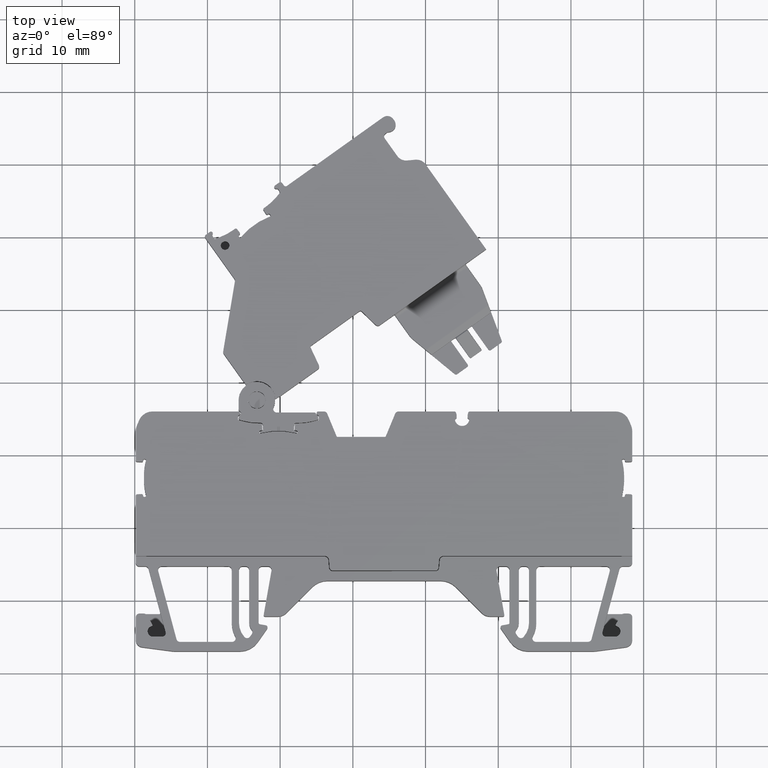
[diagram: clean part render]
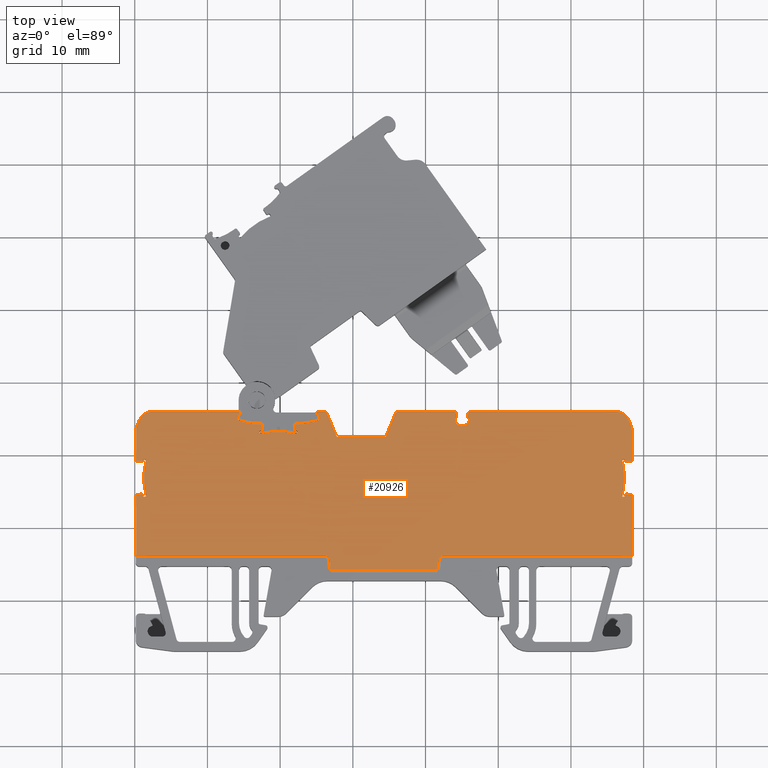
[diagram: same view with one face highlighted and labeled with its STEP entity id]
A machine part, top view. The second image highlights one B-rep face of the part: STEP entity #20926.
In plain terms, the highlighted planar face has unit normal (0, 0, 1).
Its self-contained STEP definition (entity closure, byte-faithful):
#1506 = CIRCLE ( 'NONE', #1532, 0.1500000000000945000 ) ;
#1517 = AXIS2_PLACEMENT_3D ( 'NONE', #8364, #8365, #8373 ) ;
#1532 = AXIS2_PLACEMENT_3D ( 'NONE', #8456, #8445, #8455 ) ;
#1540 = CIRCLE ( 'NONE', #1564, 9.999999999999564800 ) ;
#1555 = CIRCLE ( 'NONE', #1517, 0.2499995448645986300 ) ;
#1564 = AXIS2_PLACEMENT_3D ( 'NONE', #8446, #8458, #8463 ) ;
#1580 = AXIS2_PLACEMENT_3D ( 'NONE', #8532, #8583, #8619 ) ;
#1595 = CIRCLE ( 'NONE', #1602, 0.1999999999999779700 ) ;
#1602 = AXIS2_PLACEMENT_3D ( 'NONE', #8667, #8643, #8636 ) ;
#1618 = CIRCLE ( 'NONE', #1580, 0.1500000000000945000 ) ;
#1748 = CARTESIAN_POINT ( 'NONE',  ( 1530.137814506009800, 739.2804295605375300, 5.849999999999997900 ) ) ;
#1781 = CARTESIAN_POINT ( 'NONE',  ( 1544.294008282264900, 745.4605047375432600, 5.850000000000000500 ) ) ;
#1806 = CARTESIAN_POINT ( 'NONE',  ( 1547.548889693906600, 743.5333239649280600, 5.850000000000001400 ) ) ;
#1808 = CARTESIAN_POINT ( 'NONE',  ( 1547.349075987594900, 743.3245944585564800, 5.850000000000000500 ) ) ;
#1815 = CARTESIAN_POINT ( 'NONE',  ( 1547.549080220052700, 743.5245961472479600, 5.850000000000000500 ) ) ;
#1820 = CARTESIAN_POINT ( 'NONE',  ( 1544.218998089711900, 745.3305926638387300, 5.850000000000002300 ) ) ;
#1841 = CARTESIAN_POINT ( 'NONE',  ( 1597.327748225434600, 736.8368363815310400, 5.850000000000000500 ) ) ;
#1859 = CARTESIAN_POINT ( 'NONE',  ( 1597.030574686436900, 734.4170928687503900, 5.850000000000000500 ) ) ;
#1871 = CARTESIAN_POINT ( 'NONE',  ( 1531.396153665450400, 739.4424406175111200, 5.850000000000000500 ) ) ;
#1909 = CARTESIAN_POINT ( 'NONE',  ( 1531.541696674155400, 734.4170819057061400, 5.850000000000000500 ) ) ;
#1916 = CARTESIAN_POINT ( 'NONE',  ( 1598.434456907024700, 739.2804098858423500, 5.850000000000000500 ) ) ;
#1929 = CARTESIAN_POINT ( 'NONE',  ( 1598.243289584944900, 739.0806050215060200, 5.850000000000000500 ) ) ;
#1940 = CARTESIAN_POINT ( 'NONE',  ( 1576.016202218364900, 744.8211747399680000, 5.849999999999997000 ) ) ;
#1942 = CARTESIAN_POINT ( 'NONE',  ( 1544.394037303590000, 745.5182460559410600, 5.850000000000000500 ) ) ;
#1954 = CARTESIAN_POINT ( 'NONE',  ( 1531.546153513865000, 739.2924406175111500, 5.850000000000000500 ) ) ;
#1977 = CARTESIAN_POINT ( 'NONE',  ( 1552.372272637682500, 743.1746316020623900, 5.850000000000001400 ) ) ;
#1979 = CARTESIAN_POINT ( 'NONE',  ( 1597.176226823459300, 739.4424484188265300, 5.850000000000000500 ) ) ;
#1988 = CARTESIAN_POINT ( 'NONE',  ( 1597.424454789940000, 734.3807938762192900, 5.850000000000000500 ) ) ;
#1990 = CARTESIAN_POINT ( 'NONE',  ( 1552.222275742695000, 743.3246308532419600, 5.850000000000000500 ) ) ;
#1994 = CARTESIAN_POINT ( 'NONE',  ( 1597.176112751589900, 734.2307967161216300, 5.850000000000000500 ) ) ;
#2001 = CARTESIAN_POINT ( 'NONE',  ( 1575.899647284025100, 745.0029353545611500, 5.849999999999997000 ) ) ;
#2002 = CARTESIAN_POINT ( 'NONE',  ( 1531.546153489085100, 734.3807889135539400, 5.850000000000000500 ) ) ;
#2010 = CARTESIAN_POINT ( 'NONE',  ( 1552.372273698221100, 743.0761540405675300, 5.850000000000002300 ) ) ;
#2019 = CARTESIAN_POINT ( 'NONE',  ( 1597.274450995395000, 734.2307938762691000, 5.850000000000000500 ) ) ;
#2025 = CARTESIAN_POINT ( 'NONE',  ( 1544.519038278324400, 745.7347527068732200, 5.850000000000000500 ) ) ;
#2032 = CARTESIAN_POINT ( 'NONE',  ( 1547.310624521899200, 743.3245985186379100, 5.850000000000000500 ) ) ;
#2044 = CARTESIAN_POINT ( 'NONE',  ( 1597.274565637490000, 739.4424463827263000, 5.850000000000000500 ) ) ;
#2061 = CARTESIAN_POINT ( 'NONE',  ( 1551.983796457785500, 743.5333626602340500, 5.850000000000000500 ) ) ;
#2063 = CARTESIAN_POINT ( 'NONE',  ( 1555.313698447330100, 745.3305412210559100, 5.850000000000000500 ) ) ;
#2067 = CARTESIAN_POINT ( 'NONE',  ( 1555.238681809704800, 745.4604546359404400, 5.850000000000001400 ) ) ;
#2086 = CARTESIAN_POINT ( 'NONE',  ( 1555.138650175910200, 745.5181908462634500, 5.850000000000001400 ) ) ;
#2097 = CARTESIAN_POINT ( 'NONE',  ( 1531.541696698568100, 739.2561476238908000, 5.850000000000000500 ) ) ;
#2101 = CARTESIAN_POINT ( 'NONE',  ( 1530.137813892952600, 734.3928002747218200, 5.849999999999997900 ) ) ;
#2103 = CARTESIAN_POINT ( 'NONE',  ( 1532.434281244295100, 745.9846928684037300, 5.850000000000021800 ) ) ;
#2104 = CARTESIAN_POINT ( 'NONE',  ( 1596.137989714234200, 745.9846964441503600, 5.849999999999994300 ) ) ;
#2110 = CARTESIAN_POINT ( 'NONE',  ( 1530.137814321194400, 726.0847028920219400, 5.849999999999996100 ) ) ;
#2166 = CARTESIAN_POINT ( 'NONE',  ( 1531.147814737095100, 739.2537747806250100, 5.850000000000000500 ) ) ;
#2188 = CARTESIAN_POINT ( 'NONE',  ( 1531.147815782457000, 734.4194546214697500, 5.850000000000000500 ) ) ;
#2247 = CARTESIAN_POINT ( 'NONE',  ( 1547.160623600947700, 743.1745992814910600, 5.850000000000000500 ) ) ;
#2282 = CARTESIAN_POINT ( 'NONE',  ( 1556.117462874204900, 726.0847028920218200, 5.849999999999996100 ) ) ;
#2288 = CARTESIAN_POINT ( 'NONE',  ( 1576.108898673910100, 745.9846941071401700, 5.849999999999997900 ) ) ;
#2297 = CARTESIAN_POINT ( 'NONE',  ( 1547.160624140161600, 743.0762891516409400, 5.850000000000000500 ) ) ;
#2342 = CARTESIAN_POINT ( 'NONE',  ( 1530.137814506009800, 743.2689485054615900, 5.849999999999994300 ) ) ;
#2350 = CARTESIAN_POINT ( 'NONE',  ( 1597.030679744924600, 739.2561585857955600, 5.850000000000000500 ) ) ;
#2351 = CARTESIAN_POINT ( 'NONE',  ( 1598.434456679442100, 734.3927940862464500, 5.849999999999997900 ) ) ;
#2352 = CARTESIAN_POINT ( 'NONE',  ( 1575.783092349686100, 745.4846940691304600, 5.849999999999999600 ) ) ;
#2362 = CARTESIAN_POINT ( 'NONE',  ( 1530.329084489008700, 734.5926107711958400, 5.850000000000000500 ) ) ;
#2385 = CARTESIAN_POINT ( 'NONE',  ( 1598.434456905855100, 743.2689517748967800, 5.849999999999994300 ) ) ;
#2389 = CARTESIAN_POINT ( 'NONE',  ( 1598.282220819749500, 744.0343071198520900, 5.849999999999999600 ) ) ;
#2394 = CARTESIAN_POINT ( 'NONE',  ( 1575.783092349685800, 745.1846959691539500, 5.849999999999994300 ) ) ;
#2396 = CARTESIAN_POINT ( 'NONE',  ( 1598.434456251200800, 726.0847028920219400, 5.849999999999996100 ) ) ;
#2398 = CARTESIAN_POINT ( 'NONE',  ( 1597.985755257028800, 744.7500508138324400, 5.849999999999996100 ) ) ;
#2399 = CARTESIAN_POINT ( 'NONE',  ( 1552.185976654881200, 742.9306105734536900, 5.850000000000000500 ) ) ;
#3140 = CARTESIAN_POINT ( 'NONE',  ( 1547.160623960423700, 743.1090591949243800, 5.850000000000000500 ) ) ;
#3144 = CARTESIAN_POINT ( 'NONE',  ( 1547.160623780685700, 743.1418292382077200, 5.850000000000000500 ) ) ;
#3145 = CARTESIAN_POINT ( 'NONE',  ( 1547.160623600947700, 743.1745992814910600, 5.850000000000000500 ) ) ;
#3173 = CARTESIAN_POINT ( 'NONE',  ( 1547.160624140161600, 743.0762891516409400, 5.850000000000000500 ) ) ;
#3249 = CARTESIAN_POINT ( 'NONE',  ( 1552.372272637682500, 743.1746316020623900, 5.850000000000001400 ) ) ;
#3256 = CARTESIAN_POINT ( 'NONE',  ( 1552.372273698221100, 743.0761540405675300, 5.850000000000002300 ) ) ;
#3275 = CARTESIAN_POINT ( 'NONE',  ( 1552.372272991196700, 743.1418058559132800, 5.850000000000000500 ) ) ;
#3289 = CARTESIAN_POINT ( 'NONE',  ( 1552.372273344707500, 743.1089801097801900, 5.850000000000000500 ) ) ;
#3456 = CARTESIAN_POINT ( 'NONE',  ( 1547.233228992097800, 743.3095873353078100, 5.850000000000001400 ) ) ;
#3460 = CARTESIAN_POINT ( 'NONE',  ( 1547.160986381843300, 743.2161296777989000, 5.850000000000001400 ) ) ;
#3462 = CARTESIAN_POINT ( 'NONE',  ( 1547.160623600947700, 743.1745992814910600, 5.850000000000000500 ) ) ;
#3485 = CARTESIAN_POINT ( 'NONE',  ( 1547.175887125596800, 743.2517431673741200, 5.850000000000001400 ) ) ;
#3493 = CARTESIAN_POINT ( 'NONE',  ( 1547.268584479782200, 743.3242317577484100, 5.850000000000000500 ) ) ;
#3494 = CARTESIAN_POINT ( 'NONE',  ( 1547.310624521899200, 743.3245985186379100, 5.850000000000000500 ) ) ;
#3506 = CARTESIAN_POINT ( 'NONE',  ( 1597.241671580793300, 734.2307948228869900, 5.850000000000000500 ) ) ;
#3526 = CARTESIAN_POINT ( 'NONE',  ( 1597.274450995395000, 734.2307938762691000, 5.850000000000000500 ) ) ;
#3554 = CARTESIAN_POINT ( 'NONE',  ( 1597.208892166191800, 734.2307957695044300, 5.850000000000000500 ) ) ;
#3559 = CARTESIAN_POINT ( 'NONE',  ( 1597.176112751589900, 734.2307967161216300, 5.850000000000000500 ) ) ;
#3579 = CIRCLE ( 'NONE', #3587, 0.2000011342688790000 ) ;
#3584 = AXIS2_PLACEMENT_3D ( 'NONE', #18050, #18066, #18074 ) ;
#3585 = VECTOR ( 'NONE', #18055, 1000.000000000000000 ) ;
#3587 = AXIS2_PLACEMENT_3D ( 'NONE', #18101, #18102, #18114 ) ;
#3592 = AXIS2_PLACEMENT_3D ( 'NONE', #18011, #17982, #17987 ) ;
#3598 = VECTOR ( 'NONE', #18038, 1000.000000000000000 ) ;
#3599 = VECTOR ( 'NONE', #18002, 1000.000000000000000 ) ;
#3600 = CIRCLE ( 'NONE', #3592, 0.1999999999999779700 ) ;
#3605 = CIRCLE ( 'NONE', #3584, 2.000000000000223800 ) ;
#3620 = VECTOR ( 'NONE', #17937, 1000.000000000000000 ) ;
#3622 = VECTOR ( 'NONE', #18014, 1000.000000000000000 ) ;
#3628 = CIRCLE ( 'NONE', #3636, 0.2500000000000834900 ) ;
#3636 = AXIS2_PLACEMENT_3D ( 'NONE', #18064, #18073, #18070 ) ;
#3641 = VECTOR ( 'NONE', #18154, 1000.000000000000100 ) ;
#3647 = CIRCLE ( 'NONE', #3686, 0.1500000000000945000 ) ;
#3651 = CIRCLE ( 'NONE', #3689, 1.000000058330119400 ) ;
#3652 = VECTOR ( 'NONE', #18156, 1000.000000000000200 ) ;
#3654 = VECTOR ( 'NONE', #18261, 1000.000000000000100 ) ;
#3663 = CIRCLE ( 'NONE', #3694, 0.1500000000000945000 ) ;
#3686 = AXIS2_PLACEMENT_3D ( 'NONE', #18198, #18181, #18199 ) ;
#3689 = AXIS2_PLACEMENT_3D ( 'NONE', #18078, #18082, #18145 ) ;
#3693 = VECTOR ( 'NONE', #18220, 1000.000000000000100 ) ;
#3694 = AXIS2_PLACEMENT_3D ( 'NONE', #18239, #18232, #18233 ) ;
#3704 = VECTOR ( 'NONE', #25178, 1000.000000000000000 ) ;
#3709 = AXIS2_PLACEMENT_3D ( 'NONE', #18256, #18272, #18275 ) ;
#3711 = AXIS2_PLACEMENT_3D ( 'NONE', #18329, #18308, #18341 ) ;
#3722 = CIRCLE ( 'NONE', #3723, 0.2499995448645986300 ) ;
#3723 = AXIS2_PLACEMENT_3D ( 'NONE', #25172, #25189, #25194 ) ;
#3725 = AXIS2_PLACEMENT_3D ( 'NONE', #18077, #18080, #18148 ) ;
#3732 = CIRCLE ( 'NONE', #3709, 0.1500000000000945000 ) ;
#3744 = CIRCLE ( 'NONE', #3711, 0.1500000000000945000 ) ;
#3751 = CIRCLE ( 'NONE', #3725, 0.1500000000000945000 ) ;
#3757 = AXIS2_PLACEMENT_3D ( 'NONE', #23991, #24011, #23986 ) ;
#3762 = CIRCLE ( 'NONE', #3815, 0.4999999999997228900 ) ;
#3771 = CIRCLE ( 'NONE', #3776, 0.4999999999999449300 ) ;
#3776 = AXIS2_PLACEMENT_3D ( 'NONE', #24067, #24069, #24027 ) ;
#3779 = AXIS2_PLACEMENT_3D ( 'NONE', #24003, #23983, #24013 ) ;
#3781 = CIRCLE ( 'NONE', #3779, 0.1500000000000945000 ) ;
#3788 = CIRCLE ( 'NONE', #3757, 0.1999999999999779700 ) ;
#3791 = VECTOR ( 'NONE', #24021, 1000.000000000000000 ) ;
#3794 = CIRCLE ( 'NONE', #3800, 0.2500000000000834900 ) ;
#3800 = AXIS2_PLACEMENT_3D ( 'NONE', #24075, #24110, #24076 ) ;
#3807 = VECTOR ( 'NONE', #24088, 1000.000000000000100 ) ;
#3811 = CIRCLE ( 'NONE', #3818, 0.1500000000000945000 ) ;
#3815 = AXIS2_PLACEMENT_3D ( 'NONE', #24057, #24056, #24034 ) ;
#3818 = AXIS2_PLACEMENT_3D ( 'NONE', #24073, #24074, #24077 ) ;
#3821 = AXIS2_PLACEMENT_3D ( 'NONE', #24174, #24175, #24172 ) ;
#3822 = VECTOR ( 'NONE', #24156, 1000.000000000000000 ) ;
#3828 = CIRCLE ( 'NONE', #3821, 9.999999999999564800 ) ;
#3831 = VECTOR ( 'NONE', #24206, 1000.000000000000000 ) ;
#3837 = VECTOR ( 'NONE', #24215, 1000.000000000000100 ) ;
#3846 = AXIS2_PLACEMENT_3D ( 'NONE', #24118, #24119, #24121 ) ;
#3848 = VECTOR ( 'NONE', #24136, 1000.000000000000000 ) ;
#3850 = CIRCLE ( 'NONE', #3862, 7.499999999999840100 ) ;
#3854 = CIRCLE ( 'NONE', #3846, 1.999999762684723200 ) ;
#3858 = VECTOR ( 'NONE', #24228, 1000.000000000000000 ) ;
#3861 = CIRCLE ( 'NONE', #3879, 2.000001741718993000 ) ;
#3862 = AXIS2_PLACEMENT_3D ( 'NONE', #24197, #24195, #24167 ) ;
#3872 = VECTOR ( 'NONE', #24236, 1000.000000000000100 ) ;
#3876 = VECTOR ( 'NONE', #24225, 1000.000000000000000 ) ;
#3879 = AXIS2_PLACEMENT_3D ( 'NONE', #24234, #24199, #24223 ) ;
#3884 = AXIS2_PLACEMENT_3D ( 'NONE', #24262, #24276, #24278 ) ;
#3894 = CIRCLE ( 'NONE', #3884, 7.500001414790125100 ) ;
#3900 = AXIS2_PLACEMENT_3D ( 'NONE', #24358, #24394, #24344 ) ;
#3908 = CIRCLE ( 'NONE', #3920, 9.999999999999564800 ) ;
#3917 = VECTOR ( 'NONE', #24319, 1000.000000000000000 ) ;
#3920 = AXIS2_PLACEMENT_3D ( 'NONE', #24432, #24424, #24469 ) ;
#3922 = VECTOR ( 'NONE', #24411, 1000.000000000000000 ) ;
#3924 = AXIS2_PLACEMENT_3D ( 'NONE', #24350, #24388, #24393 ) ;
#3927 = CIRCLE ( 'NONE', #3900, 2.000000000001112000 ) ;
#3934 = CIRCLE ( 'NONE', #3924, 0.2000011342688790000 ) ;
#3939 = VECTOR ( 'NONE', #24295, 1000.000000000000000 ) ;
#3944 = VECTOR ( 'NONE', #24293, 1000.000000000000000 ) ;
#3963 = VECTOR ( 'NONE', #24532, 1000.000000000000000 ) ;
#4006 = VECTOR ( 'NONE', #24640, 1000.000000000000000 ) ;
#4310 = VECTOR ( 'NONE', #17536, 1000.000000000000100 ) ;
#4313 = AXIS2_PLACEMENT_3D ( 'NONE', #17683, #17701, #17698 ) ;
#4343 = CIRCLE ( 'NONE', #4313, 0.1999990643049010000 ) ;
#4384 = CIRCLE ( 'NONE', #4388, 0.5999999999999339200 ) ;
#4388 = AXIS2_PLACEMENT_3D ( 'NONE', #17691, #17694, #17709 ) ;
#4393 = VECTOR ( 'NONE', #17713, 1000.000000000000000 ) ;
#4396 = CIRCLE ( 'NONE', #4398, 0.1499994727400810700 ) ;
#4398 = AXIS2_PLACEMENT_3D ( 'NONE', #17790, #17765, #17794 ) ;
#4402 = VECTOR ( 'NONE', #17788, 1000.000000000000100 ) ;
#4411 = CIRCLE ( 'NONE', #4423, 0.1999998053356932800 ) ;
#4423 = AXIS2_PLACEMENT_3D ( 'NONE', #17732, #17750, #17757 ) ;
#4433 = CIRCLE ( 'NONE', #4434, 10.00000000000000900 ) ;
#4434 = AXIS2_PLACEMENT_3D ( 'NONE', #17888, #17894, #17895 ) ;
#4436 = CIRCLE ( 'NONE', #4447, 0.1999999999999779700 ) ;
#4439 = AXIS2_PLACEMENT_3D ( 'NONE', #17898, #17896, #17914 ) ;
#4443 = CIRCLE ( 'NONE', #4453, 0.1500000000000945000 ) ;
#4447 = AXIS2_PLACEMENT_3D ( 'NONE', #17928, #17929, #17961 ) ;
#4453 = AXIS2_PLACEMENT_3D ( 'NONE', #17900, #17923, #17925 ) ;
#4454 = CIRCLE ( 'NONE', #4468, 0.1500006753354377100 ) ;
#4458 = CIRCLE ( 'NONE', #4439, 0.5999999999999339200 ) ;
#4468 = AXIS2_PLACEMENT_3D ( 'NONE', #17837, #17839, #17813 ) ;
#4998 = VERTEX_POINT ( 'NONE', #18478 ) ;
#5011 = VERTEX_POINT ( 'NONE', #18536 ) ;
#5013 = VERTEX_POINT ( 'NONE', #18481 ) ;
#5014 = VERTEX_POINT ( 'NONE', #18542 ) ;
#5032 = VERTEX_POINT ( 'NONE', #18570 ) ;
#5044 = VERTEX_POINT ( 'NONE', #18573 ) ;
#5048 = VERTEX_POINT ( 'NONE', #18539 ) ;
#5070 = VERTEX_POINT ( 'NONE', #18535 ) ;
#5082 = VERTEX_POINT ( 'NONE', #18629 ) ;
#5091 = VERTEX_POINT ( 'NONE', #18643 ) ;
#5102 = VERTEX_POINT ( 'NONE', #18638 ) ;
#5120 = VERTEX_POINT ( 'NONE', #18597 ) ;
#5138 = VERTEX_POINT ( 'NONE', #18652 ) ;
#5149 = VERTEX_POINT ( 'NONE', #18674 ) ;
#5153 = VERTEX_POINT ( 'NONE', #18688 ) ;
#5154 = VERTEX_POINT ( 'NONE', #18695 ) ;
#5155 = VERTEX_POINT ( 'NONE', #18664 ) ;
#5162 = VERTEX_POINT ( 'NONE', #18668 ) ;
#5180 = VERTEX_POINT ( 'NONE', #18693 ) ;
#5202 = VERTEX_POINT ( 'NONE', #18722 ) ;
#5211 = VERTEX_POINT ( 'NONE', #18752 ) ;
#5222 = VERTEX_POINT ( 'NONE', #18747 ) ;
#5229 = VERTEX_POINT ( 'NONE', #18724 ) ;
#5238 = VERTEX_POINT ( 'NONE', #18762 ) ;
#5242 = VERTEX_POINT ( 'NONE', #18718 ) ;
#5301 = VERTEX_POINT ( 'NONE', #18818 ) ;
#5333 = VERTEX_POINT ( 'NONE', #18964 ) ;
#5356 = VERTEX_POINT ( 'NONE', #18946 ) ;
#5364 = VERTEX_POINT ( 'NONE', #18951 ) ;
#5423 = VERTEX_POINT ( 'NONE', #19098 ) ;
#5427 = VERTEX_POINT ( 'NONE', #19056 ) ;
#5452 = VERTEX_POINT ( 'NONE', #19223 ) ;
#5456 = VERTEX_POINT ( 'NONE', #19163 ) ;
#5470 = VERTEX_POINT ( 'NONE', #19181 ) ;
#5471 = VERTEX_POINT ( 'NONE', #19119 ) ;
#5478 = VERTEX_POINT ( 'NONE', #19175 ) ;
#5488 = VERTEX_POINT ( 'NONE', #19153 ) ;
#5496 = VERTEX_POINT ( 'NONE', #19170 ) ;
#5509 = VERTEX_POINT ( 'NONE', #19236 ) ;
#5529 = VERTEX_POINT ( 'NONE', #19332 ) ;
#5540 = VERTEX_POINT ( 'NONE', #19306 ) ;
#5560 = VERTEX_POINT ( 'NONE', #19323 ) ;
#5575 = VERTEX_POINT ( 'NONE', #19421 ) ;
#5583 = VERTEX_POINT ( 'NONE', #19353 ) ;
#5622 = VERTEX_POINT ( 'NONE', #19377 ) ;
#5644 = VERTEX_POINT ( 'NONE', #19508 ) ;
#5649 = VERTEX_POINT ( 'NONE', #19516 ) ;
#5687 = VERTEX_POINT ( 'NONE', #19547 ) ;
#5693 = VERTEX_POINT ( 'NONE', #19584 ) ;
#5712 = VERTEX_POINT ( 'NONE', #19625 ) ;
#5731 = VERTEX_POINT ( 'NONE', #19589 ) ;
#5737 = VERTEX_POINT ( 'NONE', #19604 ) ;
#5741 = VERTEX_POINT ( 'NONE', #19552 ) ;
#6481 = EDGE_CURVE ( 'NONE', #5242, #5229, #23589, .T. ) ;
#6529 = EDGE_CURVE ( 'NONE', #5471, #5091, #23611, .T. ) ;
#6568 = EDGE_CURVE ( 'NONE', #5070, #5238, #23619, .T. ) ;
#6608 = EDGE_CURVE ( 'NONE', #15923, #5356, #23638, .T. ) ;
#6611 = EDGE_CURVE ( 'NONE', #5423, #15904, #23626, .T. ) ;
#6615 = EDGE_CURVE ( 'NONE', #11389, #11758, #23599, .T. ) ;
#6616 = EDGE_CURVE ( 'NONE', #16050, #5301, #23632, .T. ) ;
#6636 = EDGE_CURVE ( 'NONE', #15906, #5488, #23652, .T. ) ;
#6638 = EDGE_CURVE ( 'NONE', #5229, #5427, #23639, .T. ) ;
#6642 = EDGE_CURVE ( 'NONE', #5364, #11517, #23640, .T. ) ;
#6660 = EDGE_CURVE ( 'NONE', #11504, #5333, #23618, .T. ) ;
#6678 = EDGE_CURVE ( 'NONE', #5496, #5540, #23648, .T. ) ;
#6684 = EDGE_CURVE ( 'NONE', #5583, #5529, #23617, .T. ) ;
#6685 = EDGE_CURVE ( 'NONE', #5452, #17091, #23598, .T. ) ;
#6707 = EDGE_CURVE ( 'NONE', #5470, #5496, #23600, .T. ) ;
#6741 = EDGE_CURVE ( 'NONE', #11748, #5509, #23605, .T. ) ;
#6791 = EDGE_CURVE ( 'NONE', #5644, #5238, #17523, .T. ) ;
#6842 = EDGE_CURVE ( 'NONE', #5687, #5333, #4343, .T. ) ;
#6845 = EDGE_CURVE ( 'NONE', #5242, #5456, #4384, .T. ) ;
#6855 = EDGE_CURVE ( 'NONE', #5471, #11701, #17747, .T. ) ;
#6862 = EDGE_CURVE ( 'NONE', #5423, #5560, #4411, .T. ) ;
#6872 = EDGE_CURVE ( 'NONE', #20380, #5301, #17781, .T. ) ;
#6876 = EDGE_CURVE ( 'NONE', #5649, #5364, #4396, .T. ) ;
#6894 = EDGE_CURVE ( 'NONE', #5488, #5622, #4454, .T. ) ;
#6910 = EDGE_CURVE ( 'NONE', #18415, #5540, #4458, .T. ) ;
#6918 = EDGE_CURVE ( 'NONE', #11921, #18445, #4443, .T. ) ;
#6921 = EDGE_CURVE ( 'NONE', #18445, #20373, #4433, .T. ) ;
#6925 = EDGE_CURVE ( 'NONE', #18436, #11906, #4436, .T. ) ;
#6929 = EDGE_CURVE ( 'NONE', #5575, #5356, #17966, .T. ) ;
#6939 = EDGE_CURVE ( 'NONE', #5712, #5693, #17976, .T. ) ;
#6943 = EDGE_CURVE ( 'NONE', #18430, #18436, #18001, .T. ) ;
#6944 = EDGE_CURVE ( 'NONE', #5529, #5712, #3600, .T. ) ;
#6958 = EDGE_CURVE ( 'NONE', #5456, #18488, #18037, .T. ) ;
#6966 = EDGE_CURVE ( 'NONE', #18407, #5731, #3628, .T. ) ;
#6967 = EDGE_CURVE ( 'NONE', #18487, #18483, #3605, .T. ) ;
#6969 = EDGE_CURVE ( 'NONE', #5470, #5427, #18067, .T. ) ;
#6972 = EDGE_CURVE ( 'NONE', #18421, #5644, #3579, .T. ) ;
#6985 = EDGE_CURVE ( 'NONE', #5509, #5583, #3651, .T. ) ;
#6987 = EDGE_CURVE ( 'NONE', #5693, #5737, #18155, .T. ) ;
#6989 = EDGE_CURVE ( 'NONE', #5731, #18430, #18143, .T. ) ;
#7007 = EDGE_CURVE ( 'NONE', #18506, #11810, #3647, .T. ) ;
#7019 = EDGE_CURVE ( 'NONE', #5202, #5162, #3663, .T. ) ;
#7021 = EDGE_CURVE ( 'NONE', #18483, #18485, #18225, .T. ) ;
#7025 = EDGE_CURVE ( 'NONE', #5452, #18462, #18240, .T. ) ;
#7035 = EDGE_CURVE ( 'NONE', #11901, #11545, #3732, .T. ) ;
#7040 = EDGE_CURVE ( 'NONE', #20373, #17416, #3744, .T. ) ;
#7065 = EDGE_CURVE ( 'NONE', #11847, #5011, #3751, .T. ) ;
#7075 = EDGE_CURVE ( 'NONE', #5478, #5741, #25177, .T. ) ;
#7076 = EDGE_CURVE ( 'NONE', #11855, #5222, #3722, .T. ) ;
#7078 = EDGE_CURVE ( 'NONE', #5149, #5155, #3781, .T. ) ;
#7080 = EDGE_CURVE ( 'NONE', #11352, #20380, #3788, .T. ) ;
#7089 = EDGE_CURVE ( 'NONE', #5622, #5211, #24000, .T. ) ;
#7095 = EDGE_CURVE ( 'NONE', #5180, #5575, #3762, .T. ) ;
#7103 = EDGE_CURVE ( 'NONE', #5082, #5102, #3771, .T. ) ;
#7114 = EDGE_CURVE ( 'NONE', #5120, #5649, #24102, .T. ) ;
#7117 = EDGE_CURVE ( 'NONE', #5737, #5138, #3794, .T. ) ;
#7122 = EDGE_CURVE ( 'NONE', #11704, #15961, #3811, .T. ) ;
#7131 = EDGE_CURVE ( 'NONE', #5687, #5153, #24117, .T. ) ;
#7135 = EDGE_CURVE ( 'NONE', #5741, #18491, #3854, .T. ) ;
#7140 = EDGE_CURVE ( 'NONE', #18506, #11579, #3828, .T. ) ;
#7149 = EDGE_CURVE ( 'NONE', #5211, #5154, #3850, .T. ) ;
#7150 = EDGE_CURVE ( 'NONE', #15960, #18415, #24198, .T. ) ;
#7152 = EDGE_CURVE ( 'NONE', #5082, #5138, #24184, .T. ) ;
#7155 = EDGE_CURVE ( 'NONE', #5154, #5560, #24239, .T. ) ;
#7158 = EDGE_CURVE ( 'NONE', #15960, #15972, #24242, .T. ) ;
#7162 = EDGE_CURVE ( 'NONE', #15964, #18485, #3861, .T. ) ;
#7163 = EDGE_CURVE ( 'NONE', #18407, #15964, #24219, .T. ) ;
#7166 = EDGE_CURVE ( 'NONE', #15973, #5222, #24214, .T. ) ;
#7172 = EDGE_CURVE ( 'NONE', #5153, #5120, #3894, .T. ) ;
#7186 = EDGE_CURVE ( 'NONE', #18421, #18488, #24289, .T. ) ;
#7188 = EDGE_CURVE ( 'NONE', #5102, #5149, #24314, .T. ) ;
#7189 = EDGE_CURVE ( 'NONE', #18487, #11651, #24318, .T. ) ;
#7200 = EDGE_CURVE ( 'NONE', #5478, #15973, #3927, .T. ) ;
#7201 = EDGE_CURVE ( 'NONE', #15972, #18462, #3934, .T. ) ;
#7209 = EDGE_CURVE ( 'NONE', #11682, #15961, #3908, .T. ) ;
#7211 = EDGE_CURVE ( 'NONE', #5155, #5202, #24440, .T. ) ;
#7223 = EDGE_CURVE ( 'NONE', #11352, #18491, #24561, .T. ) ;
#7240 = EDGE_CURVE ( 'NONE', #5162, #5180, #24643, .T. ) ;
#7674 = CARTESIAN_POINT ( 'NONE',  ( 1597.424454789939800, 734.3936786495688700, 5.850000000000000500 ) ) ;
#7685 = CARTESIAN_POINT ( 'NONE',  ( 1597.424454789940000, 734.4194481962680400, 5.850000000000000500 ) ) ;
#7702 = CARTESIAN_POINT ( 'NONE',  ( 1597.424454789940000, 734.3807938762192900, 5.850000000000000500 ) ) ;
#7711 = CARTESIAN_POINT ( 'NONE',  ( 1597.424454789940000, 734.4065634229184500, 5.850000000000000500 ) ) ;
#7777 = CARTESIAN_POINT ( 'NONE',  ( 1544.246484307541800, 745.4323885049091100, 5.850000000000000500 ) ) ;
#7786 = CARTESIAN_POINT ( 'NONE',  ( 1544.294008282264900, 745.4605047375432600, 5.850000000000000500 ) ) ;
#7795 = CARTESIAN_POINT ( 'NONE',  ( 1544.218998089711900, 745.3305926638387300, 5.850000000000002300 ) ) ;
#7815 = CARTESIAN_POINT ( 'NONE',  ( 1544.219575604706100, 745.3845817999474500, 5.850000000000000500 ) ) ;
#7937 = CARTESIAN_POINT ( 'NONE',  ( 1531.147814737095100, 739.2537747806250100, 5.850000000000000500 ) ) ;
#7942 = CARTESIAN_POINT ( 'NONE',  ( 1531.147814737095100, 739.2795520376016600, 5.850000000000000500 ) ) ;
#7945 = CARTESIAN_POINT ( 'NONE',  ( 1531.147814737095100, 739.2666634091134500, 5.850000000000000500 ) ) ;
#7972 = CARTESIAN_POINT ( 'NONE',  ( 1531.147814737095100, 739.2924406660899900, 5.850000000000000500 ) ) ;
#7990 = CARTESIAN_POINT ( 'NONE',  ( 1531.147815782454900, 734.3807882091689400, 5.850000000000000500 ) ) ;
#8055 = CARTESIAN_POINT ( 'NONE',  ( 1531.147815782454900, 734.3936769840006500, 5.850000000000000500 ) ) ;
#8071 = CARTESIAN_POINT ( 'NONE',  ( 1531.147815782454900, 734.4065657588323600, 5.850000000000000500 ) ) ;
#8080 = CARTESIAN_POINT ( 'NONE',  ( 1531.147815782457000, 734.4194546214697500, 5.850000000000000500 ) ) ;
#8193 = CARTESIAN_POINT ( 'NONE',  ( 1547.346913050873400, 742.9307457715972300, 5.850000000000000500 ) ) ;
#8204 = CARTESIAN_POINT ( 'NONE',  ( 1530.329083402569000, 739.0806203765591800, 5.850000000000000500 ) ) ;
#8364 = CARTESIAN_POINT ( 'NONE',  ( 1544.269038733459900, 745.7347527068732200, 5.850000000000000500 ) ) ;
#8365 = DIRECTION ( 'NONE',  ( 0.0000000000000000000, 0.0000000000000000000, 1.000000000000000000 ) ) ;
#8373 = DIRECTION ( 'NONE',  ( 1.000000000000000000, 0.0000000000000000000, 0.0000000000000000000 ) ) ;
#8445 = DIRECTION ( 'NONE',  ( -0.0000000000000000000, -0.0000000000000000000, -1.000000000000000000 ) ) ;
#8446 = CARTESIAN_POINT ( 'NONE',  ( 1587.327748225435000, 736.8368363815310400, 5.850000000000000500 ) ) ;
#8455 = DIRECTION ( 'NONE',  ( 1.000000000000000000, 8.881784196995655900E-012, 0.0000000000000000000 ) ) ;
#8456 = CARTESIAN_POINT ( 'NONE',  ( 1531.396153489085000, 734.3807889135539400, 5.850000000000000500 ) ) ;
#8458 = DIRECTION ( 'NONE',  ( -0.0000000000000000000, -0.0000000000000000000, -1.000000000000000000 ) ) ;
#8463 = DIRECTION ( 'NONE',  ( 1.000000000000000000, 0.0000000000000000000, 0.0000000000000000000 ) ) ;
#8532 = CARTESIAN_POINT ( 'NONE',  ( 1531.396153513864900, 739.2924406175111500, 5.850000000000000500 ) ) ;
#8583 = DIRECTION ( 'NONE',  ( -0.0000000000000000000, -0.0000000000000000000, -1.000000000000000000 ) ) ;
#8619 = DIRECTION ( 'NONE',  ( 1.000000000000000000, 0.0000000000000000000, 0.0000000000000000000 ) ) ;
#8636 = DIRECTION ( 'NONE',  ( 1.000000000000000000, 0.0000000000000000000, 0.0000000000000000000 ) ) ;
#8643 = DIRECTION ( 'NONE',  ( 0.0000000000000000000, 0.0000000000000000000, 1.000000000000000000 ) ) ;
#8667 = CARTESIAN_POINT ( 'NONE',  ( 1598.234456907024900, 739.2804098858130100, 5.850000000000000500 ) ) ;
#8897 = CARTESIAN_POINT ( 'NONE',  ( 1597.633288300540000, 739.0539633226363800, 5.850000000000000500 ) ) ;
#8902 = CARTESIAN_POINT ( 'NONE',  ( 1597.579524049219800, 739.0516151784114500, 5.850000000000001400 ) ) ;
#8908 = CARTESIAN_POINT ( 'NONE',  ( 1597.525132710379500, 739.0720863206249800, 5.850000000000001400 ) ) ;
#8915 = CARTESIAN_POINT ( 'NONE',  ( 1597.447384241118900, 739.1465148738335500, 5.850000000000001400 ) ) ;
#8918 = CARTESIAN_POINT ( 'NONE',  ( 1597.424560486145500, 739.1999616849011500, 5.850000000000000500 ) ) ;
#8919 = CARTESIAN_POINT ( 'NONE',  ( 1597.424561654776900, 739.2537771891719600, 5.850000000000001400 ) ) ;
#9088 = CARTESIAN_POINT ( 'NONE',  ( 1597.633185450435100, 734.6192578370019000, 5.850000000000000500 ) ) ;
#9090 = CARTESIAN_POINT ( 'NONE',  ( 1597.579421251619100, 734.6216070612561000, 5.850000000000000500 ) ) ;
#9116 = CARTESIAN_POINT ( 'NONE',  ( 1597.424454789940000, 734.4194481962680400, 5.850000000000000500 ) ) ;
#9117 = CARTESIAN_POINT ( 'NONE',  ( 1597.525029506809700, 734.6011370163943200, 5.850000000000001400 ) ) ;
#9126 = CARTESIAN_POINT ( 'NONE',  ( 1597.424454711184600, 734.4732636952335300, 5.850000000000001400 ) ) ;
#9129 = CARTESIAN_POINT ( 'NONE',  ( 1597.447279543850500, 734.5267100389238500, 5.850000000000001400 ) ) ;
#9224 = CARTESIAN_POINT ( 'NONE',  ( 1555.053553247143100, 745.5886375235591000, 5.850000000000001400 ) ) ;
#9225 = CARTESIAN_POINT ( 'NONE',  ( 1555.011809695249200, 745.6894174873714300, 5.849999999999998800 ) ) ;
#9227 = CARTESIAN_POINT ( 'NONE',  ( 1555.068191022004600, 745.8998340651816100, 5.850000000000000500 ) ) ;
#9228 = CARTESIAN_POINT ( 'NONE',  ( 1555.154732200931700, 745.9662400105531800, 5.850000000000001400 ) ) ;
#9229 = CARTESIAN_POINT ( 'NONE',  ( 1555.209110147225800, 745.9846992589970100, 5.850000000000000500 ) ) ;
#9243 = CARTESIAN_POINT ( 'NONE',  ( 1555.138650175910200, 745.5181908462634500, 5.850000000000001400 ) ) ;
#9249 = CARTESIAN_POINT ( 'NONE',  ( 1555.036287100229200, 745.8520863461610600, 5.850000000000001400 ) ) ;
#9250 = CARTESIAN_POINT ( 'NONE',  ( 1555.263651703010100, 745.9846997964290300, 5.850000000000000500 ) ) ;
#9253 = CARTESIAN_POINT ( 'NONE',  ( 1555.008054138413400, 745.7467201983820400, 5.850000000000000500 ) ) ;
#9272 = CARTESIAN_POINT ( 'NONE',  ( 1555.091416162365000, 745.5454622465230200, 5.850000000000001400 ) ) ;
#9274 = CARTESIAN_POINT ( 'NONE',  ( 1551.992680430976000, 743.7367280941047100, 5.850000000000000500 ) ) ;
#9279 = CARTESIAN_POINT ( 'NONE',  ( 1544.294008282264900, 745.4605047375432600, 5.850000000000000500 ) ) ;
#9283 = CARTESIAN_POINT ( 'NONE',  ( 1531.147814737095100, 739.2537747806250100, 5.850000000000000500 ) ) ;
#9284 = CARTESIAN_POINT ( 'NONE',  ( 1530.992847952631600, 739.0516161350027500, 5.850000000000000500 ) ) ;
#9287 = CARTESIAN_POINT ( 'NONE',  ( 1552.001564404165700, 743.9400935279754800, 5.850000000000000500 ) ) ;
#9297 = CARTESIAN_POINT ( 'NONE',  ( 1530.939083752315100, 739.0539654467467000, 5.850000000000002300 ) ) ;
#9300 = CARTESIAN_POINT ( 'NONE',  ( 1544.394037303590000, 745.5182460559410600, 5.850000000000000500 ) ) ;
#9302 = CARTESIAN_POINT ( 'NONE',  ( 1551.983796457785500, 743.5333626602340500, 5.850000000000000500 ) ) ;
#9303 = CARTESIAN_POINT ( 'NONE',  ( 1531.147814737094900, 739.1999592763412500, 5.850000000000001400 ) ) ;
#9304 = CARTESIAN_POINT ( 'NONE',  ( 1531.124989821500100, 739.1465129609160800, 5.850000000000001400 ) ) ;
#9305 = CARTESIAN_POINT ( 'NONE',  ( 1531.047239736001500, 739.0720860960740300, 5.850000000000001400 ) ) ;
#9306 = CARTESIAN_POINT ( 'NONE',  ( 1552.010448377355500, 744.1434589618462500, 5.850000000000000500 ) ) ;
#9313 = CARTESIAN_POINT ( 'NONE',  ( 1544.327351289373400, 745.4797518436759000, 5.850000000000000500 ) ) ;
#9314 = CARTESIAN_POINT ( 'NONE',  ( 1544.360694296481800, 745.4989989498083100, 5.850000000000000500 ) ) ;
#9322 = CARTESIAN_POINT ( 'NONE',  ( 1571.762750033565900, 724.4587070834910500, 5.849999999999997000 ) ) ;
#9324 = CARTESIAN_POINT ( 'NONE',  ( 1555.313698447330100, 745.3305412210559100, 5.850000000000000500 ) ) ;
#9331 = CARTESIAN_POINT ( 'NONE',  ( 1571.754129990920800, 724.3601815789541000, 5.849999999999995200 ) ) ;
#9337 = CARTESIAN_POINT ( 'NONE',  ( 1555.313698447330100, 745.1926985788359200, 5.850000000000000500 ) ) ;
#9367 = CARTESIAN_POINT ( 'NONE',  ( 1555.313698447330100, 744.9170132943959300, 5.850000000000000500 ) ) ;
#9376 = CARTESIAN_POINT ( 'NONE',  ( 1544.219000832192500, 745.1922565861859800, 5.850000000000000500 ) ) ;
#9386 = CARTESIAN_POINT ( 'NONE',  ( 1571.707426203860900, 724.2654759883962500, 5.849999999999993400 ) ) ;
#9387 = CARTESIAN_POINT ( 'NONE',  ( 1571.463174088276200, 724.0935700947442200, 5.849999999999995200 ) ) ;
#9388 = CARTESIAN_POINT ( 'NONE',  ( 1571.364272216809900, 724.0935700947442200, 5.849999999999997000 ) ) ;
#9389 = CARTESIAN_POINT ( 'NONE',  ( 1555.313698447330100, 745.0548559366159200, 5.850000000000000500 ) ) ;
#9392 = CARTESIAN_POINT ( 'NONE',  ( 1544.219003574667600, 745.0539211032789800, 5.850000000000000500 ) ) ;
#9396 = CARTESIAN_POINT ( 'NONE',  ( 1571.561589867310700, 724.1318418473258600, 5.849999999999994300 ) ) ;
#9400 = CARTESIAN_POINT ( 'NONE',  ( 1544.218998089711900, 745.3305926638387300, 5.850000000000002300 ) ) ;
#9407 = CARTESIAN_POINT ( 'NONE',  ( 1544.219006317146800, 744.9155856203719800, 5.850000000000001400 ) ) ;
#9423 = CARTESIAN_POINT ( 'NONE',  ( 1547.548889693906600, 743.5333239649280600, 5.850000000000001400 ) ) ;
#9432 = CARTESIAN_POINT ( 'NONE',  ( 1547.540006277408100, 743.7366901972360400, 5.850000000000000500 ) ) ;
#9448 = CARTESIAN_POINT ( 'NONE',  ( 1547.522239444410600, 744.1434226618521300, 5.850000000000001400 ) ) ;
#9465 = CARTESIAN_POINT ( 'NONE',  ( 1547.531122860909600, 743.9400564295441400, 5.850000000000000500 ) ) ;
#9501 = CARTESIAN_POINT ( 'NONE',  ( 1574.054204896838900, 744.7802946320116500, 5.849999999999997000 ) ) ;
#9502 = CARTESIAN_POINT ( 'NONE',  ( 1574.044970674157000, 744.8261462280331700, 5.850000000000001400 ) ) ;
#9508 = CARTESIAN_POINT ( 'NONE',  ( 1556.809519627668800, 724.4587071184709000, 5.850000000000007600 ) ) ;
#9510 = CARTESIAN_POINT ( 'NONE',  ( 1574.091926363943900, 744.9523101864384700, 5.850000000000001400 ) ) ;
#9511 = CARTESIAN_POINT ( 'NONE',  ( 1556.715179603929100, 725.5369973564309000, 5.850000000000007600 ) ) ;
#9513 = CARTESIAN_POINT ( 'NONE',  ( 1574.166537298660200, 745.0029353545609200, 5.849999999999997000 ) ) ;
#9520 = CARTESIAN_POINT ( 'NONE',  ( 1574.050919176817800, 744.8702222162431800, 5.850000000000001400 ) ) ;
#9521 = CARTESIAN_POINT ( 'NONE',  ( 1530.939085235315100, 734.6192640330076500, 5.850000000000000500 ) ) ;
#9522 = CARTESIAN_POINT ( 'NONE',  ( 1530.992849367837600, 734.6216132238070000, 5.850000000000001400 ) ) ;
#9524 = CARTESIAN_POINT ( 'NONE',  ( 1574.123631206704200, 744.9828665708449800, 5.850000000000000500 ) ) ;
#9529 = CARTESIAN_POINT ( 'NONE',  ( 1556.746626278509000, 725.1775672771109400, 5.850000000000049400 ) ) ;
#9533 = CARTESIAN_POINT ( 'NONE',  ( 1556.778072953088900, 724.8181371977909700, 5.850000000000049400 ) ) ;
#9541 = CARTESIAN_POINT ( 'NONE',  ( 1531.124990931591100, 734.5267163561715100, 5.850000000000001400 ) ) ;
#9545 = CARTESIAN_POINT ( 'NONE',  ( 1531.147815782457000, 734.4194546214697500, 5.850000000000000500 ) ) ;
#9564 = CARTESIAN_POINT ( 'NONE',  ( 1531.147815782460200, 734.4732701112820900, 5.850000000000000500 ) ) ;
#9579 = CARTESIAN_POINT ( 'NONE',  ( 1531.047241033079400, 734.6011432051885800, 5.850000000000001400 ) ) ;
#9581 = CARTESIAN_POINT ( 'NONE',  ( 1557.207997447484800, 724.0935700947442200, 5.849999999999997000 ) ) ;
#9584 = CARTESIAN_POINT ( 'NONE',  ( 1557.109095570166600, 724.0935700947442200, 5.849999999999995200 ) ) ;
#9594 = CARTESIAN_POINT ( 'NONE',  ( 1556.818139662174400, 724.3601816073472700, 5.849999999999995200 ) ) ;
#9595 = CARTESIAN_POINT ( 'NONE',  ( 1556.809519627668800, 724.4587071184709000, 5.850000000000007600 ) ) ;
#9616 = CARTESIAN_POINT ( 'NONE',  ( 1557.010679785421900, 724.1318418520328400, 5.849999999999993400 ) ) ;
#9621 = CARTESIAN_POINT ( 'NONE',  ( 1556.864843446107400, 724.2654760074115100, 5.849999999999994300 ) ) ;
#9662 = CARTESIAN_POINT ( 'NONE',  ( 1576.016129516665800, 744.8074101640259000, 5.850000000000000500 ) ) ;
#9667 = CARTESIAN_POINT ( 'NONE',  ( 1576.016202218364900, 744.8211747399680000, 5.849999999999997000 ) ) ;
#9729 = CARTESIAN_POINT ( 'NONE',  ( 1576.011979685848200, 744.7802946320119900, 5.849999999999997000 ) ) ;
#9741 = CARTESIAN_POINT ( 'NONE',  ( 1576.014722005826600, 744.7937834613740100, 5.850000000000000500 ) ) ;
#10315 = AXIS2_PLACEMENT_3D ( 'NONE', #14286, #14287, #14278 ) ;
#11352 = VERTEX_POINT ( 'NONE', #1748 ) ;
#11383 = EDGE_LOOP ( 'NONE', ( #16748, #16833, #16843, #16907, #16903, #16814, #16844, #16823, #16882, #16865, #16897, #16831, #16836, #16761, #16713, #16818, #16794, #16885, #16913, #16841, #16908, #16911, #16825, #16855, #16816, #16868, #16706, #16796, #16801, #16803, #16859, #16715, #16883, #16707, #16725, #16819, #16889, #16848, #16838, #17014, #17020, #16965, #17016, #16919, #16988, #16867, #16961, #16975, #16935, #17023, #16905, #16813, #17002, #16861, #16805, #16971, #16963, #16977, #17006, #16987, #17021, #17001, #16959, #17010, #16990, #16952, #16955, #16981, #16937, #17018, #16996, #16979, #16994, #16974, #16925, #16917, #17012, #16978, #16922, #16915, #16972, #16985, #16967, #16992, #17008, #16929, #17025, #16997, #16845, #16927, #16957, #16969, #16891, #16999, #17004, #16940, #16839, #16863, #16862, #16811, #16807, #16810, #16983, #17044, #17068, #17125, #17047, #17139 ) ) ;
#11389 = VERTEX_POINT ( 'NONE', #1781 ) ;
#11495 = VERTEX_POINT ( 'NONE', #1808 ) ;
#11496 = VERTEX_POINT ( 'NONE', #1815 ) ;
#11504 = VERTEX_POINT ( 'NONE', #1806 ) ;
#11517 = VERTEX_POINT ( 'NONE', #1820 ) ;
#11545 = VERTEX_POINT ( 'NONE', #1859 ) ;
#11579 = VERTEX_POINT ( 'NONE', #1841 ) ;
#11636 = VERTEX_POINT ( 'NONE', #1871 ) ;
#11651 = VERTEX_POINT ( 'NONE', #1916 ) ;
#11682 = VERTEX_POINT ( 'NONE', #1909 ) ;
#11701 = VERTEX_POINT ( 'NONE', #1929 ) ;
#11704 = VERTEX_POINT ( 'NONE', #1954 ) ;
#11748 = VERTEX_POINT ( 'NONE', #1940 ) ;
#11758 = VERTEX_POINT ( 'NONE', #1942 ) ;
#11804 = VERTEX_POINT ( 'NONE', #1977 ) ;
#11810 = VERTEX_POINT ( 'NONE', #1979 ) ;
#11847 = VERTEX_POINT ( 'NONE', #2002 ) ;
#11855 = VERTEX_POINT ( 'NONE', #2025 ) ;
#11899 = VERTEX_POINT ( 'NONE', #1988 ) ;
#11901 = VERTEX_POINT ( 'NONE', #1994 ) ;
#11906 = VERTEX_POINT ( 'NONE', #2001 ) ;
#11916 = VERTEX_POINT ( 'NONE', #2019 ) ;
#11921 = VERTEX_POINT ( 'NONE', #2010 ) ;
#11950 = VERTEX_POINT ( 'NONE', #1990 ) ;
#11959 = CARTESIAN_POINT ( 'NONE',  ( 1547.549080220052700, 743.5245961472479600, 5.850000000000000500 ) ) ;
#12028 = VERTEX_POINT ( 'NONE', #2044 ) ;
#12031 = CARTESIAN_POINT ( 'NONE',  ( 1547.549080220052700, 743.4722354036274500, 5.850000000000001400 ) ) ;
#12032 = VERTEX_POINT ( 'NONE', #2032 ) ;
#12033 = CARTESIAN_POINT ( 'NONE',  ( 1547.527525054658300, 743.4201970989956900, 5.850000000000001400 ) ) ;
#12041 = CARTESIAN_POINT ( 'NONE',  ( 1547.453475309991500, 743.3461482961355400, 5.850000000000001400 ) ) ;
#12102 = CARTESIAN_POINT ( 'NONE',  ( 1547.401436731211600, 743.3245937925989900, 5.850000000000000500 ) ) ;
#12109 = CARTESIAN_POINT ( 'NONE',  ( 1576.015713198408100, 744.9005692472231900, 5.850000000000000500 ) ) ;
#12155 = CARTESIAN_POINT ( 'NONE',  ( 1575.899647284025100, 745.0029353545611500, 5.849999999999997000 ) ) ;
#12167 = CARTESIAN_POINT ( 'NONE',  ( 1575.970722101454200, 744.9697738402943500, 5.850000000000000500 ) ) ;
#12175 = CARTESIAN_POINT ( 'NONE',  ( 1576.016202218364900, 744.8211747399680000, 5.849999999999997000 ) ) ;
#12216 = CARTESIAN_POINT ( 'NONE',  ( 1547.349075987594900, 743.3245944585564800, 5.850000000000000500 ) ) ;
#14278 = DIRECTION ( 'NONE',  ( 1.000000000000000000, 0.0000000000000000000, -0.0000000000000000000 ) ) ;
#14281 = PLANE ( 'NONE',  #10315 ) ;
#14286 = CARTESIAN_POINT ( 'NONE',  ( 1532.434280406640000, 743.9846928684039500, 5.850000000000000500 ) ) ;
#14287 = DIRECTION ( 'NONE',  ( 0.0000000000000000000, 0.0000000000000000000, 1.000000000000000000 ) ) ;
#14297 = FACE_OUTER_BOUND ( 'NONE', #11383, .T. ) ;
#14681 = CARTESIAN_POINT ( 'NONE',  ( 1555.285153873659500, 745.4329638319579800, 5.850000000000000500 ) ) ;
#14689 = CARTESIAN_POINT ( 'NONE',  ( 1551.981446702132200, 743.4795983170217800, 5.850000000000000500 ) ) ;
#14690 = CARTESIAN_POINT ( 'NONE',  ( 1555.313698447330100, 745.3305412210559100, 5.850000000000000500 ) ) ;
#14699 = CARTESIAN_POINT ( 'NONE',  ( 1552.076343341099300, 743.3474556931340700, 5.850000000000001400 ) ) ;
#14701 = CARTESIAN_POINT ( 'NONE',  ( 1552.001916453719600, 743.4252062059663300, 5.850000000000001400 ) ) ;
#14715 = CARTESIAN_POINT ( 'NONE',  ( 1552.183605541040600, 743.3246308532399100, 5.850000000000000500 ) ) ;
#14716 = CARTESIAN_POINT ( 'NONE',  ( 1552.129789874617000, 743.3246306952130500, 5.850000000000001400 ) ) ;
#14718 = CARTESIAN_POINT ( 'NONE',  ( 1551.983796457785500, 743.5333626602340500, 5.850000000000000500 ) ) ;
#14724 = CARTESIAN_POINT ( 'NONE',  ( 1555.313106697894500, 745.3857578985673600, 5.850000000000000500 ) ) ;
#14727 = CARTESIAN_POINT ( 'NONE',  ( 1555.238681809704800, 745.4604546359404400, 5.850000000000001400 ) ) ;
#14741 = CARTESIAN_POINT ( 'NONE',  ( 1552.299390478686500, 743.3093738251609500, 5.850000000000001400 ) ) ;
#14750 = CARTESIAN_POINT ( 'NONE',  ( 1552.357288935774700, 743.2520186882459300, 5.850000000000001400 ) ) ;
#14777 = CARTESIAN_POINT ( 'NONE',  ( 1552.222275742695000, 743.3246308532419600, 5.850000000000000500 ) ) ;
#14779 = CARTESIAN_POINT ( 'NONE',  ( 1552.263756633139600, 743.3242952614442600, 5.850000000000001400 ) ) ;
#14780 = CARTESIAN_POINT ( 'NONE',  ( 1552.371933245926600, 743.2166638033602300, 5.850000000000000500 ) ) ;
#14781 = CARTESIAN_POINT ( 'NONE',  ( 1552.372272637682500, 743.1746316020623900, 5.850000000000001400 ) ) ;
#14963 = CARTESIAN_POINT ( 'NONE',  ( 1597.316095977324900, 739.4420828308312800, 5.850000000000001400 ) ) ;
#14974 = CARTESIAN_POINT ( 'NONE',  ( 1597.274565637490000, 739.4424463827263000, 5.850000000000000500 ) ) ;
#15030 = CARTESIAN_POINT ( 'NONE',  ( 1597.424196282120000, 739.3344830962817000, 5.850000000000000500 ) ) ;
#15032 = CARTESIAN_POINT ( 'NONE',  ( 1597.351709188465500, 739.4271814838367600, 5.850000000000001400 ) ) ;
#15051 = CARTESIAN_POINT ( 'NONE',  ( 1597.424562494431700, 739.2924434283022500, 5.850000000000001400 ) ) ;
#15067 = CARTESIAN_POINT ( 'NONE',  ( 1597.409552378466500, 739.3698387722938600, 5.850000000000001400 ) ) ;
#15070 = CARTESIAN_POINT ( 'NONE',  ( 1597.176226823459300, 739.4424484188265300, 5.850000000000000500 ) ) ;
#15078 = CARTESIAN_POINT ( 'NONE',  ( 1531.363374969831700, 734.2307886787614300, 5.850000000000000500 ) ) ;
#15081 = CARTESIAN_POINT ( 'NONE',  ( 1531.330595376143300, 734.2307884439651400, 5.850000000000000500 ) ) ;
#15082 = CARTESIAN_POINT ( 'NONE',  ( 1597.209006428136500, 739.4424477401264500, 5.850000000000000500 ) ) ;
#15090 = CARTESIAN_POINT ( 'NONE',  ( 1531.297815782455000, 734.2307882091689600, 5.850000000000000500 ) ) ;
#15096 = CARTESIAN_POINT ( 'NONE',  ( 1552.183605541040600, 743.3246308532399100, 5.850000000000000500 ) ) ;
#15100 = CARTESIAN_POINT ( 'NONE',  ( 1552.196495608258800, 743.3246308532403600, 5.850000000000000500 ) ) ;
#15106 = CARTESIAN_POINT ( 'NONE',  ( 1552.209385675476800, 743.3246308532412700, 5.850000000000000500 ) ) ;
#15114 = CARTESIAN_POINT ( 'NONE',  ( 1531.396154563519500, 734.2307889135577200, 5.850000000000000500 ) ) ;
#15131 = CARTESIAN_POINT ( 'NONE',  ( 1552.222275742695000, 743.3246308532419600, 5.850000000000000500 ) ) ;
#15148 = CARTESIAN_POINT ( 'NONE',  ( 1597.241786032813500, 739.4424470614263800, 5.850000000000000500 ) ) ;
#15154 = CARTESIAN_POINT ( 'NONE',  ( 1597.274565637490000, 739.4424463827263000, 5.850000000000000500 ) ) ;
#15297 = CARTESIAN_POINT ( 'NONE',  ( 1597.274450995395000, 734.2307938762691000, 5.850000000000000500 ) ) ;
#15301 = CARTESIAN_POINT ( 'NONE',  ( 1597.409191060050000, 734.3036488643938400, 5.850000000000001400 ) ) ;
#15319 = CARTESIAN_POINT ( 'NONE',  ( 1597.424454789940000, 734.3807938762192900, 5.850000000000000500 ) ) ;
#15324 = CARTESIAN_POINT ( 'NONE',  ( 1597.351847871021200, 734.2458041705565400, 5.850000000000001400 ) ) ;
#15331 = CARTESIAN_POINT ( 'NONE',  ( 1597.424092096695600, 734.3392628174199200, 5.850000000000001400 ) ) ;
#15332 = CARTESIAN_POINT ( 'NONE',  ( 1597.316491714307900, 734.2311599568215600, 5.850000000000000500 ) ) ;
#15341 = CARTESIAN_POINT ( 'NONE',  ( 1547.336258832363200, 743.3245958119251800, 5.850000000000000500 ) ) ;
#15350 = CARTESIAN_POINT ( 'NONE',  ( 1547.310624521899200, 743.3245985186379100, 5.850000000000000500 ) ) ;
#15355 = CARTESIAN_POINT ( 'NONE',  ( 1547.349075987594900, 743.3245944585564800, 5.850000000000000500 ) ) ;
#15384 = CARTESIAN_POINT ( 'NONE',  ( 1547.323441677131100, 743.3245971652938800, 5.850000000000000500 ) ) ;
#15437 = CARTESIAN_POINT ( 'NONE',  ( 1531.256334222461200, 734.2311231573851300, 5.850000000000001400 ) ) ;
#15442 = CARTESIAN_POINT ( 'NONE',  ( 1531.363374060766500, 739.4424406506376500, 5.850000000000000500 ) ) ;
#15449 = CARTESIAN_POINT ( 'NONE',  ( 1531.396153665450400, 739.4424406175111200, 5.850000000000000500 ) ) ;
#15454 = CARTESIAN_POINT ( 'NONE',  ( 1531.330594456083400, 739.4424406837642900, 5.850000000000000500 ) ) ;
#15467 = CARTESIAN_POINT ( 'NONE',  ( 1531.297815782455000, 734.2307882091689600, 5.850000000000000500 ) ) ;
#15473 = CARTESIAN_POINT ( 'NONE',  ( 1531.297814851400100, 739.4424407168909300, 5.850000000000000500 ) ) ;
#15489 = CARTESIAN_POINT ( 'NONE',  ( 1531.148155182345800, 734.3387553329362200, 5.850000000000000500 ) ) ;
#15500 = CARTESIAN_POINT ( 'NONE',  ( 1531.147815782454900, 734.3807882091689400, 5.850000000000000500 ) ) ;
#15507 = CARTESIAN_POINT ( 'NONE',  ( 1531.220699687267800, 734.2460443901051100, 5.850000000000001400 ) ) ;
#15536 = CARTESIAN_POINT ( 'NONE',  ( 1531.162799843286200, 734.3033999938768400, 5.850000000000001400 ) ) ;
#15608 = CARTESIAN_POINT ( 'NONE',  ( 1531.147814737095100, 739.2924406660899900, 5.850000000000000500 ) ) ;
#15610 = CARTESIAN_POINT ( 'NONE',  ( 1597.424562494431700, 739.2924434283022500, 5.850000000000001400 ) ) ;
#15611 = CARTESIAN_POINT ( 'NONE',  ( 1531.148177404798600, 739.3339710185827000, 5.850000000000001400 ) ) ;
#15612 = CARTESIAN_POINT ( 'NONE',  ( 1597.424561934660000, 739.2666658261243800, 5.850000000000000500 ) ) ;
#15615 = CARTESIAN_POINT ( 'NONE',  ( 1531.255774857862000, 739.4420736164983100, 5.850000000000000500 ) ) ;
#15616 = CARTESIAN_POINT ( 'NONE',  ( 1531.297814851400100, 739.4424407168909300, 5.850000000000000500 ) ) ;
#15622 = CARTESIAN_POINT ( 'NONE',  ( 1597.424561654776900, 739.2537771891719600, 5.850000000000001400 ) ) ;
#15623 = CARTESIAN_POINT ( 'NONE',  ( 1597.424562214542700, 739.2795544630768100, 5.850000000000000500 ) ) ;
#15632 = CARTESIAN_POINT ( 'NONE',  ( 1531.220419488184700, 739.4274289630417300, 5.850000000000001400 ) ) ;
#15637 = CARTESIAN_POINT ( 'NONE',  ( 1531.163077996553700, 739.3695845500003500, 5.850000000000001400 ) ) ;
#15712 = CARTESIAN_POINT ( 'NONE',  ( 1547.549016691167000, 743.5304165405223100, 5.850000000000000500 ) ) ;
#15734 = CARTESIAN_POINT ( 'NONE',  ( 1547.548889693906600, 743.5333239649280600, 5.850000000000001400 ) ) ;
#15737 = CARTESIAN_POINT ( 'NONE',  ( 1547.549080220052700, 743.5275063439733000, 5.850000000000000500 ) ) ;
#15749 = CARTESIAN_POINT ( 'NONE',  ( 1547.549080220052700, 743.5245961472479600, 5.850000000000000500 ) ) ;
#15807 = CARTESIAN_POINT ( 'NONE',  ( 1555.171994053841700, 745.4989454428225600, 5.850000000000000500 ) ) ;
#15817 = CARTESIAN_POINT ( 'NONE',  ( 1555.205337931773100, 745.4797000393814400, 5.850000000000000500 ) ) ;
#15820 = CARTESIAN_POINT ( 'NONE',  ( 1555.238681809704800, 745.4604546359404400, 5.850000000000001400 ) ) ;
#15844 = CARTESIAN_POINT ( 'NONE',  ( 1555.138650175910200, 745.5181908462634500, 5.850000000000001400 ) ) ;
#15904 = VERTEX_POINT ( 'NONE', #2061 ) ;
#15906 = VERTEX_POINT ( 'NONE', #2063 ) ;
#15919 = VERTEX_POINT ( 'NONE', #2067 ) ;
#15923 = VERTEX_POINT ( 'NONE', #2086 ) ;
#15960 = VERTEX_POINT ( 'NONE', #2110 ) ;
#15961 = VERTEX_POINT ( 'NONE', #2097 ) ;
#15964 = VERTEX_POINT ( 'NONE', #2104 ) ;
#15972 = VERTEX_POINT ( 'NONE', #2101 ) ;
#15973 = VERTEX_POINT ( 'NONE', #2103 ) ;
#16050 = VERTEX_POINT ( 'NONE', #2166 ) ;
#16706 = ORIENTED_EDGE ( 'NONE', *, *, #7150, .T. ) ;
#16707 = ORIENTED_EDGE ( 'NONE', *, *, #6845, .T. ) ;
#16713 = ORIENTED_EDGE ( 'NONE', *, *, #20473, .T. ) ;
#16715 = ORIENTED_EDGE ( 'NONE', *, *, #6638, .F. ) ;
#16725 = ORIENTED_EDGE ( 'NONE', *, *, #6958, .T. ) ;
#16748 = ORIENTED_EDGE ( 'NONE', *, *, #6615, .T. ) ;
#16761 = ORIENTED_EDGE ( 'NONE', *, *, #19933, .T. ) ;
#16794 = ORIENTED_EDGE ( 'NONE', *, *, #7209, .F. ) ;
#16796 = ORIENTED_EDGE ( 'NONE', *, *, #6910, .T. ) ;
#16801 = ORIENTED_EDGE ( 'NONE', *, *, #6678, .F. ) ;
#16803 = ORIENTED_EDGE ( 'NONE', *, *, #6707, .F. ) ;
#16805 = ORIENTED_EDGE ( 'NONE', *, *, #7021, .T. ) ;
#16807 = ORIENTED_EDGE ( 'NONE', *, *, #6660, .T. ) ;
#16810 = ORIENTED_EDGE ( 'NONE', *, *, #6842, .F. ) ;
#16811 = ORIENTED_EDGE ( 'NONE', *, *, #20060, .F. ) ;
#16813 = ORIENTED_EDGE ( 'NONE', *, *, #20488, .T. ) ;
#16814 = ORIENTED_EDGE ( 'NONE', *, *, #7075, .T. ) ;
#16816 = ORIENTED_EDGE ( 'NONE', *, *, #7201, .F. ) ;
#16818 = ORIENTED_EDGE ( 'NONE', *, *, #7122, .T. ) ;
#16819 = ORIENTED_EDGE ( 'NONE', *, *, #7186, .F. ) ;
#16823 = ORIENTED_EDGE ( 'NONE', *, *, #7223, .F. ) ;
#16825 = ORIENTED_EDGE ( 'NONE', *, *, #6685, .F. ) ;
#16831 = ORIENTED_EDGE ( 'NONE', *, *, #20286, .T. ) ;
#16833 = ORIENTED_EDGE ( 'NONE', *, *, #20430, .T. ) ;
#16836 = ORIENTED_EDGE ( 'NONE', *, *, #19985, .T. ) ;
#16838 = ORIENTED_EDGE ( 'NONE', *, *, #6568, .F. ) ;
#16839 = ORIENTED_EDGE ( 'NONE', *, *, #19596, .T. ) ;
#16841 = ORIENTED_EDGE ( 'NONE', *, *, #19777, .T. ) ;
#16843 = ORIENTED_EDGE ( 'NONE', *, *, #7076, .T. ) ;
#16844 = ORIENTED_EDGE ( 'NONE', *, *, #7135, .T. ) ;
#16845 = ORIENTED_EDGE ( 'NONE', *, *, #20142, .F. ) ;
#16848 = ORIENTED_EDGE ( 'NONE', *, *, #6791, .T. ) ;
#16855 = ORIENTED_EDGE ( 'NONE', *, *, #7025, .T. ) ;
#16859 = ORIENTED_EDGE ( 'NONE', *, *, #6969, .T. ) ;
#16861 = ORIENTED_EDGE ( 'NONE', *, *, #6967, .T. ) ;
#16862 = ORIENTED_EDGE ( 'NONE', *, *, #20532, .F. ) ;
#16863 = ORIENTED_EDGE ( 'NONE', *, *, #19886, .T. ) ;
#16865 = ORIENTED_EDGE ( 'NONE', *, *, #6872, .T. ) ;
#16867 = ORIENTED_EDGE ( 'NONE', *, *, #7007, .T. ) ;
#16868 = ORIENTED_EDGE ( 'NONE', *, *, #7158, .F. ) ;
#16882 = ORIENTED_EDGE ( 'NONE', *, *, #7080, .T. ) ;
#16883 = ORIENTED_EDGE ( 'NONE', *, *, #6481, .F. ) ;
#16885 = ORIENTED_EDGE ( 'NONE', *, *, #20448, .T. ) ;
#16889 = ORIENTED_EDGE ( 'NONE', *, *, #6972, .T. ) ;
#16891 = ORIENTED_EDGE ( 'NONE', *, *, #6918, .T. ) ;
#16897 = ORIENTED_EDGE ( 'NONE', *, *, #6616, .F. ) ;
#16903 = ORIENTED_EDGE ( 'NONE', *, *, #7200, .F. ) ;
#16905 = ORIENTED_EDGE ( 'NONE', *, *, #6855, .T. ) ;
#16907 = ORIENTED_EDGE ( 'NONE', *, *, #7166, .F. ) ;
#16908 = ORIENTED_EDGE ( 'NONE', *, *, #19954, .T. ) ;
#16911 = ORIENTED_EDGE ( 'NONE', *, *, #20335, .T. ) ;
#16913 = ORIENTED_EDGE ( 'NONE', *, *, #7065, .T. ) ;
#16915 = ORIENTED_EDGE ( 'NONE', *, *, #20098, .T. ) ;
#16917 = ORIENTED_EDGE ( 'NONE', *, *, #7240, .T. ) ;
#16919 = ORIENTED_EDGE ( 'NONE', *, *, #20451, .F. ) ;
#16922 = ORIENTED_EDGE ( 'NONE', *, *, #6608, .F. ) ;
#16925 = ORIENTED_EDGE ( 'NONE', *, *, #7019, .T. ) ;
#16927 = ORIENTED_EDGE ( 'NONE', *, *, #19783, .T. ) ;
#16929 = ORIENTED_EDGE ( 'NONE', *, *, #7155, .T. ) ;
#16935 = ORIENTED_EDGE ( 'NONE', *, *, #19987, .T. ) ;
#16937 = ORIENTED_EDGE ( 'NONE', *, *, #7117, .T. ) ;
#16940 = ORIENTED_EDGE ( 'NONE', *, *, #19440, .T. ) ;
#16952 = ORIENTED_EDGE ( 'NONE', *, *, #6944, .T. ) ;
#16955 = ORIENTED_EDGE ( 'NONE', *, *, #6939, .T. ) ;
#16957 = ORIENTED_EDGE ( 'NONE', *, *, #19674, .T. ) ;
#16959 = ORIENTED_EDGE ( 'NONE', *, *, #6741, .T. ) ;
#16961 = ORIENTED_EDGE ( 'NONE', *, *, #19785, .T. ) ;
#16963 = ORIENTED_EDGE ( 'NONE', *, *, #7163, .F. ) ;
#16965 = ORIENTED_EDGE ( 'NONE', *, *, #19650, .T. ) ;
#16967 = ORIENTED_EDGE ( 'NONE', *, *, #6894, .T. ) ;
#16969 = ORIENTED_EDGE ( 'NONE', *, *, #19497, .T. ) ;
#16971 = ORIENTED_EDGE ( 'NONE', *, *, #7162, .F. ) ;
#16972 = ORIENTED_EDGE ( 'NONE', *, *, #20140, .T. ) ;
#16974 = ORIENTED_EDGE ( 'NONE', *, *, #7211, .T. ) ;
#16975 = ORIENTED_EDGE ( 'NONE', *, *, #19731, .T. ) ;
#16977 = ORIENTED_EDGE ( 'NONE', *, *, #6966, .T. ) ;
#16978 = ORIENTED_EDGE ( 'NONE', *, *, #6929, .T. ) ;
#16979 = ORIENTED_EDGE ( 'NONE', *, *, #7188, .T. ) ;
#16981 = ORIENTED_EDGE ( 'NONE', *, *, #6987, .T. ) ;
#16983 = ORIENTED_EDGE ( 'NONE', *, *, #7131, .T. ) ;
#16985 = ORIENTED_EDGE ( 'NONE', *, *, #6636, .T. ) ;
#16987 = ORIENTED_EDGE ( 'NONE', *, *, #6943, .T. ) ;
#16988 = ORIENTED_EDGE ( 'NONE', *, *, #7140, .F. ) ;
#16990 = ORIENTED_EDGE ( 'NONE', *, *, #6684, .T. ) ;
#16992 = ORIENTED_EDGE ( 'NONE', *, *, #7089, .T. ) ;
#16994 = ORIENTED_EDGE ( 'NONE', *, *, #7078, .T. ) ;
#16996 = ORIENTED_EDGE ( 'NONE', *, *, #7103, .T. ) ;
#16997 = ORIENTED_EDGE ( 'NONE', *, *, #6611, .T. ) ;
#16999 = ORIENTED_EDGE ( 'NONE', *, *, #6921, .T. ) ;
#17001 = ORIENTED_EDGE ( 'NONE', *, *, #20537, .T. ) ;
#17002 = ORIENTED_EDGE ( 'NONE', *, *, #7189, .F. ) ;
#17004 = ORIENTED_EDGE ( 'NONE', *, *, #7040, .T. ) ;
#17006 = ORIENTED_EDGE ( 'NONE', *, *, #6989, .T. ) ;
#17008 = ORIENTED_EDGE ( 'NONE', *, *, #7149, .T. ) ;
#17010 = ORIENTED_EDGE ( 'NONE', *, *, #6985, .T. ) ;
#17012 = ORIENTED_EDGE ( 'NONE', *, *, #7095, .T. ) ;
#17014 = ORIENTED_EDGE ( 'NONE', *, *, #20161, .T. ) ;
#17016 = ORIENTED_EDGE ( 'NONE', *, *, #7035, .T. ) ;
#17018 = ORIENTED_EDGE ( 'NONE', *, *, #7152, .F. ) ;
#17020 = ORIENTED_EDGE ( 'NONE', *, *, #19847, .T. ) ;
#17021 = ORIENTED_EDGE ( 'NONE', *, *, #6925, .T. ) ;
#17023 = ORIENTED_EDGE ( 'NONE', *, *, #6529, .F. ) ;
#17025 = ORIENTED_EDGE ( 'NONE', *, *, #6862, .F. ) ;
#17044 = ORIENTED_EDGE ( 'NONE', *, *, #7172, .T. ) ;
#17047 = ORIENTED_EDGE ( 'NONE', *, *, #6642, .T. ) ;
#17068 = ORIENTED_EDGE ( 'NONE', *, *, #7114, .T. ) ;
#17091 = VERTEX_POINT ( 'NONE', #2188 ) ;
#17125 = ORIENTED_EDGE ( 'NONE', *, *, #6876, .T. ) ;
#17139 = ORIENTED_EDGE ( 'NONE', *, *, #20221, .T. ) ;
#17280 = VERTEX_POINT ( 'NONE', #2247 ) ;
#17416 = VERTEX_POINT ( 'NONE', #2297 ) ;
#17523 = LINE ( 'NONE', #17532, #4310 ) ;
#17532 = CARTESIAN_POINT ( 'NONE',  ( 1598.243186083389900, 734.5926045801429600, 5.850000000000000500 ) ) ;
#17536 = DIRECTION ( 'NONE',  ( -0.9990467897672120600, 0.04365216897048632100, 0.0000000000000000000 ) ) ;
#17683 = CARTESIAN_POINT ( 'NONE',  ( 1547.322430850910000, 744.1346961685150100, 5.850000000000000500 ) ) ;
#17691 = CARTESIAN_POINT ( 'NONE',  ( 1572.454806885469900, 725.4847028920220300, 5.849999999999994300 ) ) ;
#17694 = DIRECTION ( 'NONE',  ( -0.0000000000000000000, -0.0000000000000000000, -1.000000000000000000 ) ) ;
#17698 = DIRECTION ( 'NONE',  ( 1.000000000000000000, 0.0000000000000000000, 0.0000000000000000000 ) ) ;
#17701 = DIRECTION ( 'NONE',  ( -0.0000000000000000000, -0.0000000000000000000, -1.000000000000000000 ) ) ;
#17709 = DIRECTION ( 'NONE',  ( 1.000000000000000000, 0.0000000000000000000, 0.0000000000000000000 ) ) ;
#17713 = DIRECTION ( 'NONE',  ( 0.9990476171441260400, 0.04363322906505689300, 0.0000000000000000000 ) ) ;
#17732 = CARTESIAN_POINT ( 'NONE',  ( 1552.210257599960200, 744.1347298899280500, 5.850000000000000500 ) ) ;
#17744 = CARTESIAN_POINT ( 'NONE',  ( 1597.633288300540000, 739.0539633226363800, 5.850000000000000500 ) ) ;
#17747 = LINE ( 'NONE', #17744, #4393 ) ;
#17750 = DIRECTION ( 'NONE',  ( -0.0000000000000000000, -0.0000000000000000000, -1.000000000000000000 ) ) ;
#17757 = DIRECTION ( 'NONE',  ( 1.000000000000000000, 0.0000000000000000000, 0.0000000000000000000 ) ) ;
#17765 = DIRECTION ( 'NONE',  ( -0.0000000000000000000, -0.0000000000000000000, -1.000000000000000000 ) ) ;
#17781 = LINE ( 'NONE', #17795, #4402 ) ;
#17788 = DIRECTION ( 'NONE',  ( 0.9990466693896576900, -0.04365492390821493900, 0.0000000000000000000 ) ) ;
#17790 = CARTESIAN_POINT ( 'NONE',  ( 1544.369005789875000, 744.9155871072313200, 5.850000000000000500 ) ) ;
#17794 = DIRECTION ( 'NONE',  ( 1.000000000000000000, 0.0000000000000000000, 0.0000000000000000000 ) ) ;
#17795 = CARTESIAN_POINT ( 'NONE',  ( 1530.329083283910000, 739.0806203817443200, 5.850000000000000500 ) ) ;
#17813 = DIRECTION ( 'NONE',  ( 1.000000000000000000, 0.0000000000000000000, 0.0000000000000000000 ) ) ;
#17837 = CARTESIAN_POINT ( 'NONE',  ( 1555.163697771995000, 744.9170132943959300, 5.850000000000000500 ) ) ;
#17839 = DIRECTION ( 'NONE',  ( -0.0000000000000000000, -0.0000000000000000000, -1.000000000000000000 ) ) ;
#17888 = CARTESIAN_POINT ( 'NONE',  ( 1549.766173765045600, 733.2277989204150100, 5.850000000000000500 ) ) ;
#17894 = DIRECTION ( 'NONE',  ( 0.0000000000000000000, 0.0000000000000000000, 1.000000000000000000 ) ) ;
#17895 = DIRECTION ( 'NONE',  ( 1.000000000000000000, 0.0000000000000000000, 0.0000000000000000000 ) ) ;
#17896 = DIRECTION ( 'NONE',  ( -0.0000000000000000000, -0.0000000000000000000, -1.000000000000000000 ) ) ;
#17898 = CARTESIAN_POINT ( 'NONE',  ( 1556.117462874204900, 725.4847028920220300, 5.849999999999994300 ) ) ;
#17900 = CARTESIAN_POINT ( 'NONE',  ( 1552.222273698229900, 743.0761527482490000, 5.850000000000000500 ) ) ;
#17914 = DIRECTION ( 'NONE',  ( 1.000000000000000000, 0.0000000000000000000, 0.0000000000000000000 ) ) ;
#17923 = DIRECTION ( 'NONE',  ( -0.0000000000000000000, -0.0000000000000000000, -1.000000000000000000 ) ) ;
#17925 = DIRECTION ( 'NONE',  ( 1.000000000000000000, 0.0000000000000000000, 0.0000000000000000000 ) ) ;
#17928 = CARTESIAN_POINT ( 'NONE',  ( 1575.983092349685000, 745.1846959691539500, 5.849999999999994300 ) ) ;
#17929 = DIRECTION ( 'NONE',  ( 0.0000000000000000000, 0.0000000000000000000, 1.000000000000000000 ) ) ;
#17937 = DIRECTION ( 'NONE',  ( -1.000000000000000000, -0.0000000000000000000, 0.0000000000000000000 ) ) ;
#17958 = CARTESIAN_POINT ( 'NONE',  ( 1532.434280406640000, 745.9846997964288000, 5.850000000000000500 ) ) ;
#17961 = DIRECTION ( 'NONE',  ( 1.000000000000000000, 0.0000000000000000000, 0.0000000000000000000 ) ) ;
#17966 = LINE ( 'NONE', #17958, #3620 ) ;
#17972 = CARTESIAN_POINT ( 'NONE',  ( 1574.283092233000200, 743.9846928684039500, 5.850000000000000500 ) ) ;
#17976 = LINE ( 'NONE', #17972, #3599 ) ;
#17982 = DIRECTION ( 'NONE',  ( 0.0000000000000000000, 0.0000000000000000000, 1.000000000000000000 ) ) ;
#17987 = DIRECTION ( 'NONE',  ( 1.000000000000000000, 0.0000000000000000000, 0.0000000000000000000 ) ) ;
#18001 = LINE ( 'NONE', #18005, #3622 ) ;
#18002 = DIRECTION ( 'NONE',  ( -0.0000000000000000000, 1.000000000000000000, 0.0000000000000000000 ) ) ;
#18005 = CARTESIAN_POINT ( 'NONE',  ( 1575.783092349686700, 743.9846928684039500, 5.850000000000000500 ) ) ;
#18011 = CARTESIAN_POINT ( 'NONE',  ( 1574.083092233000600, 745.1846959691539500, 5.849999999999994300 ) ) ;
#18014 = DIRECTION ( 'NONE',  ( 0.0000000000000000000, -1.000000000000000000, -0.0000000000000000000 ) ) ;
#18037 = LINE ( 'NONE', #18043, #3598 ) ;
#18038 = DIRECTION ( 'NONE',  ( 1.000000000000000000, 0.0000000000000000000, -0.0000000000000000000 ) ) ;
#18043 = CARTESIAN_POINT ( 'NONE',  ( 1532.434280406640000, 726.0847028920219400, 5.850000000000000500 ) ) ;
#18050 = CARTESIAN_POINT ( 'NONE',  ( 1596.434456905854900, 743.2689519614390300, 5.849999999999994300 ) ) ;
#18054 = CARTESIAN_POINT ( 'NONE',  ( 1532.434280406640000, 724.0935700947442200, 5.850000000000000500 ) ) ;
#18055 = DIRECTION ( 'NONE',  ( 1.000000000000000000, 0.0000000000000000000, -0.0000000000000000000 ) ) ;
#18064 = CARTESIAN_POINT ( 'NONE',  ( 1576.108898703080100, 745.7346941071399400, 5.850000000000000500 ) ) ;
#18066 = DIRECTION ( 'NONE',  ( 0.0000000000000000000, 0.0000000000000000000, 1.000000000000000000 ) ) ;
#18067 = LINE ( 'NONE', #18054, #3585 ) ;
#18070 = DIRECTION ( 'NONE',  ( -1.000000000000000000, -8.881784196998286700E-013, 0.0000000000000000000 ) ) ;
#18073 = DIRECTION ( 'NONE',  ( -0.0000000000000000000, -0.0000000000000000000, 1.000000000000000000 ) ) ;
#18074 = DIRECTION ( 'NONE',  ( 1.000000000000000000, 0.0000000000000000000, 0.0000000000000000000 ) ) ;
#18077 = CARTESIAN_POINT ( 'NONE',  ( 1531.396153489085000, 734.3807889135539400, 5.850000000000000500 ) ) ;
#18078 = CARTESIAN_POINT ( 'NONE',  ( 1575.033092291344900, 744.9846951837170100, 5.849999999999994300 ) ) ;
#18080 = DIRECTION ( 'NONE',  ( -0.0000000000000000000, -0.0000000000000000000, -1.000000000000000000 ) ) ;
#18082 = DIRECTION ( 'NONE',  ( -0.0000000000000000000, -0.0000000000000000000, -1.000000000000000000 ) ) ;
#18101 = CARTESIAN_POINT ( 'NONE',  ( 1598.234455545175000, 734.3927940914010200, 5.850000000000000500 ) ) ;
#18102 = DIRECTION ( 'NONE',  ( 0.0000000000000000000, 0.0000000000000000000, 1.000000000000000000 ) ) ;
#18114 = DIRECTION ( 'NONE',  ( 1.000000000000000000, 0.0000000000000000000, 0.0000000000000000000 ) ) ;
#18143 = LINE ( 'NONE', #18158, #3652 ) ;
#18145 = DIRECTION ( 'NONE',  ( 1.000000000000000000, 0.0000000000000000000, 0.0000000000000000000 ) ) ;
#18148 = DIRECTION ( 'NONE',  ( 1.000000000000000000, 0.0000000000000000000, 0.0000000000000000000 ) ) ;
#18153 = CARTESIAN_POINT ( 'NONE',  ( 1574.283092232999900, 745.4846938941040000, 5.850000000000000500 ) ) ;
#18154 = DIRECTION ( 'NONE',  ( -0.2588190450971619100, 0.9659258262905041600, 0.0000000000000000000 ) ) ;
#18155 = LINE ( 'NONE', #18153, #3641 ) ;
#18156 = DIRECTION ( 'NONE',  ( -0.2588190450992523500, -0.9659258262899439500, 0.0000000000000000000 ) ) ;
#18158 = CARTESIAN_POINT ( 'NONE',  ( 1575.867417246508000, 745.7993988684156600, 5.850000000000000500 ) ) ;
#18181 = DIRECTION ( 'NONE',  ( -0.0000000000000000000, -0.0000000000000000000, -1.000000000000000000 ) ) ;
#18198 = CARTESIAN_POINT ( 'NONE',  ( 1597.176223717714900, 739.2924484188589500, 5.850000000000000500 ) ) ;
#18199 = DIRECTION ( 'NONE',  ( 1.000000000000000000, -7.401486830829714300E-013, 0.0000000000000000000 ) ) ;
#18220 = DIRECTION ( 'NONE',  ( -0.3826777224420316900, 0.9238818976181855100, 0.0000000000000000000 ) ) ;
#18225 = LINE ( 'NONE', #18247, #3693 ) ;
#18232 = DIRECTION ( 'NONE',  ( 0.0000000000000000000, 0.0000000000000000000, -1.000000000000000000 ) ) ;
#18233 = DIRECTION ( 'NONE',  ( -1.000000000000000000, 0.0000000000000000000, 0.0000000000000000000 ) ) ;
#18239 = CARTESIAN_POINT ( 'NONE',  ( 1557.899969980840100, 742.6346885793659600, 5.850000000000000500 ) ) ;
#18240 = LINE ( 'NONE', #18286, #3654 ) ;
#18247 = CARTESIAN_POINT ( 'NONE',  ( 1598.282220938407600, 744.0343068333811500, 5.850000000000000500 ) ) ;
#18256 = CARTESIAN_POINT ( 'NONE',  ( 1597.176117083350200, 734.3807967160589700, 5.850000000000000500 ) ) ;
#18261 = DIRECTION ( 'NONE',  ( -0.9990467897672068400, -0.04365216897060588500, 0.0000000000000000000 ) ) ;
#18272 = DIRECTION ( 'NONE',  ( -0.0000000000000000000, -0.0000000000000000000, -1.000000000000000000 ) ) ;
#18275 = DIRECTION ( 'NONE',  ( 1.000000000000000000, 0.0000000000000000000, 0.0000000000000000000 ) ) ;
#18286 = CARTESIAN_POINT ( 'NONE',  ( 1530.939085235315100, 734.6192640330076500, 5.850000000000000500 ) ) ;
#18308 = DIRECTION ( 'NONE',  ( -0.0000000000000000000, -0.0000000000000000000, -1.000000000000000000 ) ) ;
#18329 = CARTESIAN_POINT ( 'NONE',  ( 1547.310624140160100, 743.0762899743650700, 5.850000000000000500 ) ) ;
#18341 = DIRECTION ( 'NONE',  ( 1.000000000000000000, 0.0000000000000000000, 0.0000000000000000000 ) ) ;
#18407 = VERTEX_POINT ( 'NONE', #2288 ) ;
#18415 = VERTEX_POINT ( 'NONE', #2282 ) ;
#18421 = VERTEX_POINT ( 'NONE', #2351 ) ;
#18430 = VERTEX_POINT ( 'NONE', #2352 ) ;
#18436 = VERTEX_POINT ( 'NONE', #2394 ) ;
#18445 = VERTEX_POINT ( 'NONE', #2399 ) ;
#18462 = VERTEX_POINT ( 'NONE', #2362 ) ;
#18478 = CARTESIAN_POINT ( 'NONE',  ( 1531.297815782455000, 734.2307882091689600, 5.850000000000000500 ) ) ;
#18481 = CARTESIAN_POINT ( 'NONE',  ( 1531.147815782454900, 734.3807882091689400, 5.850000000000000500 ) ) ;
#18483 = VERTEX_POINT ( 'NONE', #2389 ) ;
#18485 = VERTEX_POINT ( 'NONE', #2398 ) ;
#18487 = VERTEX_POINT ( 'NONE', #2385 ) ;
#18488 = VERTEX_POINT ( 'NONE', #2396 ) ;
#18491 = VERTEX_POINT ( 'NONE', #2342 ) ;
#18506 = VERTEX_POINT ( 'NONE', #2350 ) ;
#18535 = CARTESIAN_POINT ( 'NONE',  ( 1597.424454789940000, 734.4194481962680400, 5.850000000000000500 ) ) ;
#18536 = CARTESIAN_POINT ( 'NONE',  ( 1531.396154563519500, 734.2307889135577200, 5.850000000000000500 ) ) ;
#18539 = CARTESIAN_POINT ( 'NONE',  ( 1531.147814737095100, 739.2924406660899900, 5.850000000000000500 ) ) ;
#18542 = CARTESIAN_POINT ( 'NONE',  ( 1531.297814851400100, 739.4424407168909300, 5.850000000000000500 ) ) ;
#18570 = CARTESIAN_POINT ( 'NONE',  ( 1597.424562494431700, 739.2924434283022500, 5.850000000000001400 ) ) ;
#18573 = CARTESIAN_POINT ( 'NONE',  ( 1552.183605541040600, 743.3246308532399100, 5.850000000000000500 ) ) ;
#18597 = CARTESIAN_POINT ( 'NONE',  ( 1545.003509148709800, 744.5903053335805500, 5.850000000000000500 ) ) ;
#18629 = CARTESIAN_POINT ( 'NONE',  ( 1566.283565163924800, 745.9846929607130100, 5.849999999999997900 ) ) ;
#18638 = CARTESIAN_POINT ( 'NONE',  ( 1565.821624340074300, 745.6760320531939200, 5.850000000000000500 ) ) ;
#18643 = CARTESIAN_POINT ( 'NONE',  ( 1597.424561654776900, 739.2537771891719600, 5.850000000000001400 ) ) ;
#18652 = CARTESIAN_POINT ( 'NONE',  ( 1573.957285870810200, 745.9846938560891700, 5.849999999999997900 ) ) ;
#18664 = CARTESIAN_POINT ( 'NONE',  ( 1564.399518443482300, 742.4846853273829800, 5.850000000000000500 ) ) ;
#18668 = CARTESIAN_POINT ( 'NONE',  ( 1557.761387648093900, 742.5772870371347400, 5.850000000000000500 ) ) ;
#18674 = CARTESIAN_POINT ( 'NONE',  ( 1564.538100708570000, 742.5772835765134200, 5.849999999999999600 ) ) ;
#18688 = CARTESIAN_POINT ( 'NONE',  ( 1546.944646012200100, 744.3346931105760400, 5.850000000000000500 ) ) ;
#18693 = CARTESIAN_POINT ( 'NONE',  ( 1556.477868241608300, 745.6760385089396600, 5.850000000000000500 ) ) ;
#18695 = CARTESIAN_POINT ( 'NONE',  ( 1552.582478463389900, 744.3346958225088200, 5.850000000000000500 ) ) ;
#18718 = CARTESIAN_POINT ( 'NONE',  ( 1571.857090160336600, 725.5369974089009000, 5.849999999999997000 ) ) ;
#18722 = CARTESIAN_POINT ( 'NONE',  ( 1557.899969943315500, 742.4846869533745300, 5.850000000000000500 ) ) ;
#18724 = CARTESIAN_POINT ( 'NONE',  ( 1571.762750033565900, 724.4587070834910500, 5.849999999999997000 ) ) ;
#18747 = CARTESIAN_POINT ( 'NONE',  ( 1544.274322970775100, 745.9846963840376500, 5.850000000000032500 ) ) ;
#18752 = CARTESIAN_POINT ( 'NONE',  ( 1554.523622113825200, 744.5902515776070900, 5.850000000000000500 ) ) ;
#18762 = CARTESIAN_POINT ( 'NONE',  ( 1597.633185450435100, 734.6192578370019000, 5.850000000000000500 ) ) ;
#18818 = CARTESIAN_POINT ( 'NONE',  ( 1530.939083752315100, 739.0539654467467000, 5.850000000000002300 ) ) ;
#18946 = CARTESIAN_POINT ( 'NONE',  ( 1555.263651703010100, 745.9846997964290300, 5.850000000000000500 ) ) ;
#18951 = CARTESIAN_POINT ( 'NONE',  ( 1544.219006317146800, 744.9155856203719800, 5.850000000000001400 ) ) ;
#18964 = CARTESIAN_POINT ( 'NONE',  ( 1547.522239444410600, 744.1434226618521300, 5.850000000000001400 ) ) ;
#19056 = CARTESIAN_POINT ( 'NONE',  ( 1571.364272216809900, 724.0935700947442200, 5.849999999999997000 ) ) ;
#19098 = CARTESIAN_POINT ( 'NONE',  ( 1552.010448377355500, 744.1434589618462500, 5.850000000000000500 ) ) ;
#19119 = CARTESIAN_POINT ( 'NONE',  ( 1597.633288300540000, 739.0539633226363800, 5.850000000000000500 ) ) ;
#19153 = CARTESIAN_POINT ( 'NONE',  ( 1555.313698447330100, 744.9170132943959300, 5.850000000000000500 ) ) ;
#19163 = CARTESIAN_POINT ( 'NONE',  ( 1572.454806885469900, 726.0847028920219400, 5.849999999999996100 ) ) ;
#19170 = CARTESIAN_POINT ( 'NONE',  ( 1556.809519627668800, 724.4587071184709000, 5.850000000000007600 ) ) ;
#19175 = CARTESIAN_POINT ( 'NONE',  ( 1530.586516611401300, 744.7500483132855600, 5.849999999999996100 ) ) ;
#19181 = CARTESIAN_POINT ( 'NONE',  ( 1557.207997447484800, 724.0935700947442200, 5.849999999999997000 ) ) ;
#19223 = CARTESIAN_POINT ( 'NONE',  ( 1530.939085235315100, 734.6192640330076500, 5.850000000000000500 ) ) ;
#19236 = CARTESIAN_POINT ( 'NONE',  ( 1576.011979685848200, 744.7802946320119900, 5.849999999999997000 ) ) ;
#19306 = CARTESIAN_POINT ( 'NONE',  ( 1556.715179603929100, 725.5369973564309000, 5.850000000000007600 ) ) ;
#19323 = CARTESIAN_POINT ( 'NONE',  ( 1552.210257211085000, 744.3347296952633800, 5.850000000000001400 ) ) ;
#19332 = CARTESIAN_POINT ( 'NONE',  ( 1574.166537298660200, 745.0029353545609200, 5.849999999999997000 ) ) ;
#19353 = CARTESIAN_POINT ( 'NONE',  ( 1574.054204896838900, 744.7802946320116500, 5.849999999999997000 ) ) ;
#19377 = CARTESIAN_POINT ( 'NONE',  ( 1555.202515692733000, 744.7721223990168900, 5.850000000000000500 ) ) ;
#19421 = CARTESIAN_POINT ( 'NONE',  ( 1556.015927231205100, 745.9846997964288000, 5.850000000000000500 ) ) ;
#19440 = EDGE_CURVE ( 'NONE', #17416, #17280, #24375, .T. ) ;
#19497 = EDGE_CURVE ( 'NONE', #11804, #11921, #24328, .T. ) ;
#19508 = CARTESIAN_POINT ( 'NONE',  ( 1598.243186055936100, 734.5926045813424700, 5.850000000000000500 ) ) ;
#19516 = CARTESIAN_POINT ( 'NONE',  ( 1544.330184851447000, 744.7706982652418900, 5.850000000000000500 ) ) ;
#19547 = CARTESIAN_POINT ( 'NONE',  ( 1547.322431738482500, 744.3346952327747200, 5.850000000000000500 ) ) ;
#19552 = CARTESIAN_POINT ( 'NONE',  ( 1530.290050692708700, 744.0343037598911500, 5.849999999999996100 ) ) ;
#19584 = CARTESIAN_POINT ( 'NONE',  ( 1574.283092233000600, 745.4846938941037700, 5.850000000000000500 ) ) ;
#19589 = CARTESIAN_POINT ( 'NONE',  ( 1575.867417246507800, 745.7993988684153200, 5.850000000000000500 ) ) ;
#19596 = EDGE_CURVE ( 'NONE', #17280, #12032, #24367, .T. ) ;
#19604 = CARTESIAN_POINT ( 'NONE',  ( 1574.198767356551600, 745.7993986173636400, 5.850000000000000500 ) ) ;
#19625 = CARTESIAN_POINT ( 'NONE',  ( 1574.283092233000200, 745.1846959691539500, 5.849999999999996100 ) ) ;
#19650 = EDGE_CURVE ( 'NONE', #11916, #11901, #24405, .T. ) ;
#19674 = EDGE_CURVE ( 'NONE', #11950, #11804, #24423, .T. ) ;
#19731 = EDGE_CURVE ( 'NONE', #12028, #5032, #24526, .T. ) ;
#19777 = EDGE_CURVE ( 'NONE', #5011, #4998, #24480, .T. ) ;
#19783 = EDGE_CURVE ( 'NONE', #5044, #11950, #24528, .T. ) ;
#19785 = EDGE_CURVE ( 'NONE', #11810, #12028, #24522, .T. ) ;
#19847 = EDGE_CURVE ( 'NONE', #11899, #11916, #24530, .T. ) ;
#19886 = EDGE_CURVE ( 'NONE', #12032, #11495, #24503, .T. ) ;
#19933 = EDGE_CURVE ( 'NONE', #5014, #11636, #24491, .T. ) ;
#19954 = EDGE_CURVE ( 'NONE', #4998, #5013, #24470, .T. ) ;
#19977 = CARTESIAN_POINT ( 'NONE',  ( 1571.857090160336600, 725.5369974089009000, 5.849999999999997000 ) ) ;
#19985 = EDGE_CURVE ( 'NONE', #5048, #5014, #24508, .T. ) ;
#19987 = EDGE_CURVE ( 'NONE', #5032, #5091, #24575, .T. ) ;
#20008 = CARTESIAN_POINT ( 'NONE',  ( 1571.794196742489500, 724.8181371919610000, 5.849999999999994300 ) ) ;
#20028 = CARTESIAN_POINT ( 'NONE',  ( 1571.762750033565900, 724.4587070834910500, 5.849999999999997000 ) ) ;
#20052 = CARTESIAN_POINT ( 'NONE',  ( 1571.825643451413000, 725.1775673004309500, 5.849999999999994300 ) ) ;
#20060 = EDGE_CURVE ( 'NONE', #11504, #11496, #24756, .T. ) ;
#20098 = EDGE_CURVE ( 'NONE', #15923, #15919, #24714, .T. ) ;
#20140 = EDGE_CURVE ( 'NONE', #15919, #15906, #24717, .T. ) ;
#20142 = EDGE_CURVE ( 'NONE', #5044, #15904, #24664, .T. ) ;
#20161 = EDGE_CURVE ( 'NONE', #5070, #11899, #24669, .T. ) ;
#20221 = EDGE_CURVE ( 'NONE', #11517, #11389, #24691, .T. ) ;
#20286 = EDGE_CURVE ( 'NONE', #16050, #5048, #24753, .T. ) ;
#20335 = EDGE_CURVE ( 'NONE', #5013, #17091, #24801, .T. ) ;
#20373 = VERTEX_POINT ( 'NONE', #8193 ) ;
#20380 = VERTEX_POINT ( 'NONE', #8204 ) ;
#20430 = EDGE_CURVE ( 'NONE', #11758, #11855, #1555, .T. ) ;
#20448 = EDGE_CURVE ( 'NONE', #11682, #11847, #1506, .T. ) ;
#20451 = EDGE_CURVE ( 'NONE', #11579, #11545, #1540, .T. ) ;
#20473 = EDGE_CURVE ( 'NONE', #11636, #11704, #1618, .T. ) ;
#20488 = EDGE_CURVE ( 'NONE', #11701, #11651, #1595, .T. ) ;
#20532 = EDGE_CURVE ( 'NONE', #11496, #11495, #24837, .T. ) ;
#20537 = EDGE_CURVE ( 'NONE', #11906, #11748, #24915, .T. ) ;
#20926 = ADVANCED_FACE ( 'NONE', ( #14297 ), #14281, .T. ) ;
#23589 = B_SPLINE_CURVE_WITH_KNOTS ( 'NONE', 3,
 ( #19977, #20052, #20008, #20028 ),
 .UNSPECIFIED., .F., .F.,
 ( 4, 4 ),
 ( 0.0000000000000000000, 1.000000000000000000 ),
 .UNSPECIFIED. ) ;
#23598 = B_SPLINE_CURVE_WITH_KNOTS ( 'NONE', 3,
 ( #9521, #9522, #9579, #9541, #9564, #9545 ),
 .UNSPECIFIED., .F., .F.,
 ( 4, 2, 4 ),
 ( 0.0000000000000000000, 0.5000000000000000000, 1.000000000000000000 ),
 .UNSPECIFIED. ) ;
#23599 = B_SPLINE_CURVE_WITH_KNOTS ( 'NONE', 3,
 ( #9279, #9313, #9314, #9300 ),
 .UNSPECIFIED., .F., .F.,
 ( 4, 4 ),
 ( 0.0000000000000000000, 1.000000000000000000 ),
 .UNSPECIFIED. ) ;
#23600 = B_SPLINE_CURVE_WITH_KNOTS ( 'NONE', 3,
 ( #9581, #9584, #9616, #9621, #9594, #9595 ),
 .UNSPECIFIED., .F., .F.,
 ( 4, 2, 4 ),
 ( 0.0000000000000000000, 0.5000000000000000000, 1.000000000000000000 ),
 .UNSPECIFIED. ) ;
#23605 = B_SPLINE_CURVE_WITH_KNOTS ( 'NONE', 3,
 ( #9667, #9662, #9741, #9729 ),
 .UNSPECIFIED., .F., .F.,
 ( 4, 4 ),
 ( 0.0000000000000000000, 1.000000000000000000 ),
 .UNSPECIFIED. ) ;
#23611 = B_SPLINE_CURVE_WITH_KNOTS ( 'NONE', 3,
 ( #8897, #8902, #8908, #8915, #8918, #8919 ),
 .UNSPECIFIED., .F., .F.,
 ( 4, 2, 4 ),
 ( 0.0000000000000000000, 0.5000000000000000000, 1.000000000000000000 ),
 .UNSPECIFIED. ) ;
#23617 = B_SPLINE_CURVE_WITH_KNOTS ( 'NONE', 3,
 ( #9501, #9502, #9520, #9510, #9524, #9513 ),
 .UNSPECIFIED., .F., .F.,
 ( 4, 2, 4 ),
 ( 0.0000000000000000000, 0.5000000000000000000, 1.000000000000000000 ),
 .UNSPECIFIED. ) ;
#23618 = B_SPLINE_CURVE_WITH_KNOTS ( 'NONE', 3,
 ( #9423, #9432, #9465, #9448 ),
 .UNSPECIFIED., .F., .F.,
 ( 4, 4 ),
 ( 0.0000000000000000000, 1.000000000000000000 ),
 .UNSPECIFIED. ) ;
#23619 = B_SPLINE_CURVE_WITH_KNOTS ( 'NONE', 3,
 ( #9116, #9126, #9129, #9117, #9090, #9088 ),
 .UNSPECIFIED., .F., .F.,
 ( 4, 2, 4 ),
 ( 0.0000000000000000000, 0.5000000000000000000, 1.000000000000000000 ),
 .UNSPECIFIED. ) ;
#23626 = B_SPLINE_CURVE_WITH_KNOTS ( 'NONE', 3,
 ( #9306, #9287, #9274, #9302 ),
 .UNSPECIFIED., .F., .F.,
 ( 4, 4 ),
 ( 0.0000000000000000000, 1.000000000000000000 ),
 .UNSPECIFIED. ) ;
#23632 = B_SPLINE_CURVE_WITH_KNOTS ( 'NONE', 3,
 ( #9283, #9303, #9304, #9305, #9284, #9297 ),
 .UNSPECIFIED., .F., .F.,
 ( 4, 2, 4 ),
 ( 0.0000000000000000000, 0.5000000000000000000, 1.000000000000000000 ),
 .UNSPECIFIED. ) ;
#23638 = B_SPLINE_CURVE_WITH_KNOTS ( 'NONE', 3,
 ( #9243, #9272, #9224, #9225, #9253, #9249, #9227, #9228, #9229, #9250 ),
 .UNSPECIFIED., .F., .F.,
 ( 4, 2, 2, 2, 4 ),
 ( 0.0000000000000000000, 0.2500000000000000000, 0.5000000000000000000, 0.7500000000000000000, 1.000000000000000000 ),
 .UNSPECIFIED. ) ;
#23639 = B_SPLINE_CURVE_WITH_KNOTS ( 'NONE', 3,
 ( #9322, #9331, #9386, #9396, #9387, #9388 ),
 .UNSPECIFIED., .F., .F.,
 ( 4, 2, 4 ),
 ( 0.0000000000000000000, 0.5000000000000000000, 1.000000000000000000 ),
 .UNSPECIFIED. ) ;
#23640 = B_SPLINE_CURVE_WITH_KNOTS ( 'NONE', 3,
 ( #9407, #9392, #9376, #9400 ),
 .UNSPECIFIED., .F., .F.,
 ( 4, 4 ),
 ( 0.0000000000000000000, 1.000000000000000000 ),
 .UNSPECIFIED. ) ;
#23648 = B_SPLINE_CURVE_WITH_KNOTS ( 'NONE', 3,
 ( #9508, #9533, #9529, #9511 ),
 .UNSPECIFIED., .F., .F.,
 ( 4, 4 ),
 ( 0.0000000000000000000, 1.000000000000000000 ),
 .UNSPECIFIED. ) ;
#23652 = B_SPLINE_CURVE_WITH_KNOTS ( 'NONE', 3,
 ( #9324, #9337, #9389, #9367 ),
 .UNSPECIFIED., .F., .F.,
 ( 4, 4 ),
 ( 0.0000000000000000000, 1.000000000000000000 ),
 .UNSPECIFIED. ) ;
#23983 = DIRECTION ( 'NONE',  ( 0.0000000000000000000, 0.0000000000000000000, -1.000000000000000000 ) ) ;
#23986 = DIRECTION ( 'NONE',  ( 1.000000000000000000, 0.0000000000000000000, 0.0000000000000000000 ) ) ;
#23990 = CARTESIAN_POINT ( 'NONE',  ( 1555.202518181654800, 744.7721230657815600, 5.850000000000000500 ) ) ;
#23991 = CARTESIAN_POINT ( 'NONE',  ( 1530.337814506009900, 739.2804297052520000, 5.850000000000000500 ) ) ;
#24000 = LINE ( 'NONE', #23990, #3791 ) ;
#24003 = CARTESIAN_POINT ( 'NONE',  ( 1564.399518462244900, 742.6346853273829500, 5.850000000000000500 ) ) ;
#24011 = DIRECTION ( 'NONE',  ( 0.0000000000000000000, 0.0000000000000000000, 1.000000000000000000 ) ) ;
#24013 = DIRECTION ( 'NONE',  ( -1.000000000000000000, 0.0000000000000000000, 0.0000000000000000000 ) ) ;
#24021 = DIRECTION ( 'NONE',  ( -0.9659394003167369700, -0.2587683808268363400, 0.0000000000000000000 ) ) ;
#24027 = DIRECTION ( 'NONE',  ( 1.000000000000000000, 0.0000000000000000000, 0.0000000000000000000 ) ) ;
#24034 = DIRECTION ( 'NONE',  ( 1.000000000000000000, 0.0000000000000000000, 0.0000000000000000000 ) ) ;
#24056 = DIRECTION ( 'NONE',  ( 0.0000000000000000000, 0.0000000000000000000, 1.000000000000000000 ) ) ;
#24057 = CARTESIAN_POINT ( 'NONE',  ( 1556.015927231205100, 745.4846997964290300, 5.850000000000000500 ) ) ;
#24067 = CARTESIAN_POINT ( 'NONE',  ( 1566.283565193095000, 745.4846929607132300, 5.850000000000000500 ) ) ;
#24069 = DIRECTION ( 'NONE',  ( 0.0000000000000000000, 0.0000000000000000000, 1.000000000000000000 ) ) ;
#24073 = CARTESIAN_POINT ( 'NONE',  ( 1531.396153513864900, 739.2924406175111500, 5.850000000000000500 ) ) ;
#24074 = DIRECTION ( 'NONE',  ( -0.0000000000000000000, -0.0000000000000000000, -1.000000000000000000 ) ) ;
#24075 = CARTESIAN_POINT ( 'NONE',  ( 1573.957285899980200, 745.7346938560889400, 5.850000000000000500 ) ) ;
#24076 = DIRECTION ( 'NONE',  ( 1.000000000000000000, 0.0000000000000000000, 0.0000000000000000000 ) ) ;
#24077 = DIRECTION ( 'NONE',  ( 1.000000000000000000, 0.0000000000000000000, 0.0000000000000000000 ) ) ;
#24081 = CARTESIAN_POINT ( 'NONE',  ( 1545.003509148709800, 744.5903053335806600, 5.850000000000000500 ) ) ;
#24088 = DIRECTION ( 'NONE',  ( -0.9659343507407325300, 0.2587872293199172700, 0.0000000000000000000 ) ) ;
#24102 = LINE ( 'NONE', #24081, #3807 ) ;
#24110 = DIRECTION ( 'NONE',  ( 0.0000000000000000000, 0.0000000000000000000, 1.000000000000000000 ) ) ;
#24117 = LINE ( 'NONE', #24152, #3848 ) ;
#24118 = CARTESIAN_POINT ( 'NONE',  ( 1532.137814268694900, 743.2689484058259900, 5.849999999999994300 ) ) ;
#24119 = DIRECTION ( 'NONE',  ( 0.0000000000000000000, 0.0000000000000000000, 1.000000000000000000 ) ) ;
#24121 = DIRECTION ( 'NONE',  ( 1.000000000000000000, 0.0000000000000000000, 0.0000000000000000000 ) ) ;
#24136 = DIRECTION ( 'NONE',  ( -1.000000000000000000, -0.0000000000000000000, 0.0000000000000000000 ) ) ;
#24152 = CARTESIAN_POINT ( 'NONE',  ( 1532.434280406640000, 744.3346952327747200, 5.850000000000000500 ) ) ;
#24156 = DIRECTION ( 'NONE',  ( 1.000000000000000000, 0.0000000000000000000, -0.0000000000000000000 ) ) ;
#24167 = DIRECTION ( 'NONE',  ( 1.000000000000000000, 0.0000000000000000000, 0.0000000000000000000 ) ) ;
#24172 = DIRECTION ( 'NONE',  ( 1.000000000000000000, -1.443289932012766400E-013, 0.0000000000000000000 ) ) ;
#24174 = CARTESIAN_POINT ( 'NONE',  ( 1587.327748225435000, 736.8368363815310400, 5.850000000000000500 ) ) ;
#24175 = DIRECTION ( 'NONE',  ( -0.0000000000000000000, -0.0000000000000000000, -1.000000000000000000 ) ) ;
#24179 = CARTESIAN_POINT ( 'NONE',  ( 1532.434280406640000, 726.0847028920219400, 5.850000000000000500 ) ) ;
#24184 = LINE ( 'NONE', #24216, #3876 ) ;
#24195 = DIRECTION ( 'NONE',  ( -0.0000000000000000000, -0.0000000000000000000, -1.000000000000000000 ) ) ;
#24197 = CARTESIAN_POINT ( 'NONE',  ( 1552.582481319724800, 751.8346958225079100, 5.850000000000000500 ) ) ;
#24198 = LINE ( 'NONE', #24179, #3822 ) ;
#24199 = DIRECTION ( 'NONE',  ( -0.0000000000000000000, -0.0000000000000000000, -1.000000000000000000 ) ) ;
#24206 = DIRECTION ( 'NONE',  ( 0.9999999999999932300, 1.166807916832511100E-007, -0.0000000000000000000 ) ) ;
#24214 = LINE ( 'NONE', #24237, #3837 ) ;
#24215 = DIRECTION ( 'NONE',  ( 0.9999999999999559200, 2.969274737050291400E-007, -0.0000000000000000000 ) ) ;
#24216 = CARTESIAN_POINT ( 'NONE',  ( 1568.553392669078200, 745.9846932255584300, 5.849999999999994300 ) ) ;
#24219 = LINE ( 'NONE', #24229, #3831 ) ;
#24221 = CARTESIAN_POINT ( 'NONE',  ( 1552.582478463389900, 744.3346958225088200, 5.850000000000000500 ) ) ;
#24223 = DIRECTION ( 'NONE',  ( 1.000000000000000000, 0.0000000000000000000, 0.0000000000000000000 ) ) ;
#24225 = DIRECTION ( 'NONE',  ( 0.9999999999999932300, 1.166808249891518900E-007, -0.0000000000000000000 ) ) ;
#24227 = CARTESIAN_POINT ( 'NONE',  ( 1530.137813926278100, 733.7462725814348200, 5.849999999999994300 ) ) ;
#24228 = DIRECTION ( 'NONE',  ( -5.154509296079474500E-008, 0.9999999999999986700, -0.0000000000000000000 ) ) ;
#24229 = CARTESIAN_POINT ( 'NONE',  ( 1584.730035328373100, 745.9846951130612100, 5.849999999999994300 ) ) ;
#24234 = CARTESIAN_POINT ( 'NONE',  ( 1596.137989852650000, 743.9846947024311700, 5.849999999999994300 ) ) ;
#24236 = DIRECTION ( 'NONE',  ( -0.9999999958593482900, 9.100166732075872900E-005, 0.0000000000000000000 ) ) ;
#24237 = CARTESIAN_POINT ( 'NONE',  ( 1544.081860119230400, 745.9846963268901200, 5.850000000000049400 ) ) ;
#24239 = LINE ( 'NONE', #24221, #3872 ) ;
#24242 = LINE ( 'NONE', #24227, #3858 ) ;
#24262 = CARTESIAN_POINT ( 'NONE',  ( 1546.944863509674900, 751.8346938148130200, 5.850000000000000500 ) ) ;
#24276 = DIRECTION ( 'NONE',  ( -0.0000000000000000000, -0.0000000000000000000, -1.000000000000000000 ) ) ;
#24278 = DIRECTION ( 'NONE',  ( 1.000000000000000000, -7.401485434627910400E-014, 0.0000000000000000000 ) ) ;
#24282 = CARTESIAN_POINT ( 'NONE',  ( 1598.434456251200800, 726.0847028920219400, 5.849999999999994300 ) ) ;
#24286 = CARTESIAN_POINT ( 'NONE',  ( 1598.434456906796600, 740.0591230823107500, 5.849999999999994300 ) ) ;
#24289 = LINE ( 'NONE', #24282, #3917 ) ;
#24293 = DIRECTION ( 'NONE',  ( 2.933082322876259000E-010, -1.000000000000000000, -0.0000000000000000000 ) ) ;
#24295 = DIRECTION ( 'NONE',  ( -0.3826783391343768200, -0.9238816421800765100, 0.0000000000000000000 ) ) ;
#24303 = CARTESIAN_POINT ( 'NONE',  ( 1565.821624308144700, 745.6760319761072000, 5.850000000000000500 ) ) ;
#24314 = LINE ( 'NONE', #24303, #3939 ) ;
#24318 = LINE ( 'NONE', #24286, #3944 ) ;
#24319 = DIRECTION ( 'NONE',  ( -5.154508429457451100E-008, -0.9999999999999986700, -0.0000000000000000000 ) ) ;
#24328 = B_SPLINE_CURVE_WITH_KNOTS ( 'NONE', 3,
 ( #3249, #3275, #3289, #3256 ),
 .UNSPECIFIED., .F., .F.,
 ( 4, 4 ),
 ( 0.0000000000000000000, 1.000000000000000000 ),
 .UNSPECIFIED. ) ;
#24344 = DIRECTION ( 'NONE',  ( 1.000000000000000000, 1.665334536936808900E-013, 0.0000000000000000000 ) ) ;
#24350 = CARTESIAN_POINT ( 'NONE',  ( 1530.337815027224900, 734.3928002824538900, 5.850000000000000500 ) ) ;
#24358 = CARTESIAN_POINT ( 'NONE',  ( 1532.434280406640000, 743.9846928684039500, 5.849999999999994300 ) ) ;
#24367 = B_SPLINE_CURVE_WITH_KNOTS ( 'NONE', 3,
 ( #3462, #3460, #3485, #3456, #3493, #3494 ),
 .UNSPECIFIED., .F., .F.,
 ( 4, 2, 4 ),
 ( 0.0000000000000000000, 0.5000000000000000000, 1.000000000000000000 ),
 .UNSPECIFIED. ) ;
#24375 = B_SPLINE_CURVE_WITH_KNOTS ( 'NONE', 3,
 ( #3173, #3140, #3144, #3145 ),
 .UNSPECIFIED., .F., .F.,
 ( 4, 4 ),
 ( 0.0000000000000000000, 1.000000000000000000 ),
 .UNSPECIFIED. ) ;
#24388 = DIRECTION ( 'NONE',  ( -0.0000000000000000000, -0.0000000000000000000, -1.000000000000000000 ) ) ;
#24393 = DIRECTION ( 'NONE',  ( 1.000000000000000000, 0.0000000000000000000, 0.0000000000000000000 ) ) ;
#24394 = DIRECTION ( 'NONE',  ( -0.0000000000000000000, -0.0000000000000000000, -1.000000000000000000 ) ) ;
#24405 = B_SPLINE_CURVE_WITH_KNOTS ( 'NONE', 3,
 ( #3526, #3506, #3554, #3559 ),
 .UNSPECIFIED., .F., .F.,
 ( 4, 4 ),
 ( 0.0000000000000000000, 1.000000000000000000 ),
 .UNSPECIFIED. ) ;
#24409 = CARTESIAN_POINT ( 'NONE',  ( 1532.434280406640000, 742.4846853273828600, 5.850000000000000500 ) ) ;
#24411 = DIRECTION ( 'NONE',  ( -1.000000000000000000, -0.0000000000000000000, 0.0000000000000000000 ) ) ;
#24423 = B_SPLINE_CURVE_WITH_KNOTS ( 'NONE', 3,
 ( #14777, #14779, #14741, #14750, #14780, #14781 ),
 .UNSPECIFIED., .F., .F.,
 ( 4, 2, 4 ),
 ( 0.0000000000000000000, 0.5000000000000000000, 1.000000000000000000 ),
 .UNSPECIFIED. ) ;
#24424 = DIRECTION ( 'NONE',  ( -0.0000000000000000000, -0.0000000000000000000, -1.000000000000000000 ) ) ;
#24432 = CARTESIAN_POINT ( 'NONE',  ( 1541.244575678894800, 736.8366147158510600, 5.850000000000000500 ) ) ;
#24440 = LINE ( 'NONE', #24409, #3922 ) ;
#24469 = DIRECTION ( 'NONE',  ( 1.000000000000000000, 3.330669073875614800E-014, 0.0000000000000000000 ) ) ;
#24470 = B_SPLINE_CURVE_WITH_KNOTS ( 'NONE', 3,
 ( #15467, #15437, #15507, #15536, #15489, #15500 ),
 .UNSPECIFIED., .F., .F.,
 ( 4, 2, 4 ),
 ( 0.0000000000000000000, 0.5000000000000000000, 1.000000000000000000 ),
 .UNSPECIFIED. ) ;
#24480 = B_SPLINE_CURVE_WITH_KNOTS ( 'NONE', 3,
 ( #15114, #15078, #15081, #15090 ),
 .UNSPECIFIED., .F., .F.,
 ( 4, 4 ),
 ( 0.0000000000000000000, 1.000000000000000000 ),
 .UNSPECIFIED. ) ;
#24490 = CARTESIAN_POINT ( 'NONE',  ( 1530.137814506009800, 743.2689486050969700, 5.849999999999994300 ) ) ;
#24491 = B_SPLINE_CURVE_WITH_KNOTS ( 'NONE', 3,
 ( #15473, #15454, #15442, #15449 ),
 .UNSPECIFIED., .F., .F.,
 ( 4, 4 ),
 ( 0.0000000000000000000, 1.000000000000000000 ),
 .UNSPECIFIED. ) ;
#24503 = B_SPLINE_CURVE_WITH_KNOTS ( 'NONE', 3,
 ( #15350, #15384, #15341, #15355 ),
 .UNSPECIFIED., .F., .F.,
 ( 4, 4 ),
 ( 0.0000000000000000000, 1.000000000000000000 ),
 .UNSPECIFIED. ) ;
#24508 = B_SPLINE_CURVE_WITH_KNOTS ( 'NONE', 3,
 ( #15608, #15611, #15637, #15632, #15615, #15616 ),
 .UNSPECIFIED., .F., .F.,
 ( 4, 2, 4 ),
 ( 0.0000000000000000000, 0.5000000000000000000, 1.000000000000000000 ),
 .UNSPECIFIED. ) ;
#24522 = B_SPLINE_CURVE_WITH_KNOTS ( 'NONE', 3,
 ( #15070, #15082, #15148, #15154 ),
 .UNSPECIFIED., .F., .F.,
 ( 4, 4 ),
 ( 0.0000000000000000000, 1.000000000000000000 ),
 .UNSPECIFIED. ) ;
#24526 = B_SPLINE_CURVE_WITH_KNOTS ( 'NONE', 3,
 ( #14974, #14963, #15032, #15067, #15030, #15051 ),
 .UNSPECIFIED., .F., .F.,
 ( 4, 2, 4 ),
 ( 0.0000000000000000000, 0.5000000000000000000, 1.000000000000000000 ),
 .UNSPECIFIED. ) ;
#24528 = B_SPLINE_CURVE_WITH_KNOTS ( 'NONE', 3,
 ( #15096, #15100, #15106, #15131 ),
 .UNSPECIFIED., .F., .F.,
 ( 4, 4 ),
 ( 0.0000000000000000000, 1.000000000000000000 ),
 .UNSPECIFIED. ) ;
#24530 = B_SPLINE_CURVE_WITH_KNOTS ( 'NONE', 3,
 ( #15319, #15331, #15301, #15324, #15332, #15297 ),
 .UNSPECIFIED., .F., .F.,
 ( 4, 2, 4 ),
 ( 0.0000000000000000000, 0.5000000000000000000, 1.000000000000000000 ),
 .UNSPECIFIED. ) ;
#24532 = DIRECTION ( 'NONE',  ( 0.0000000000000000000, 1.000000000000000000, -0.0000000000000000000 ) ) ;
#24561 = LINE ( 'NONE', #24490, #3963 ) ;
#24575 = B_SPLINE_CURVE_WITH_KNOTS ( 'NONE', 3,
 ( #15610, #15623, #15612, #15622 ),
 .UNSPECIFIED., .F., .F.,
 ( 4, 4 ),
 ( 0.0000000000000000000, 1.000000000000000000 ),
 .UNSPECIFIED. ) ;
#24588 = CARTESIAN_POINT ( 'NONE',  ( 1557.761387648094100, 742.5772870371337100, 5.850000000000000500 ) ) ;
#24640 = DIRECTION ( 'NONE',  ( -0.3826769482142709500, 0.9238822183078383400, 0.0000000000000000000 ) ) ;
#24643 = LINE ( 'NONE', #24588, #4006 ) ;
#24664 = B_SPLINE_CURVE_WITH_KNOTS ( 'NONE', 3,
 ( #14715, #14716, #14699, #14701, #14689, #14718 ),
 .UNSPECIFIED., .F., .F.,
 ( 4, 2, 4 ),
 ( 0.0000000000000000000, 0.5000000000000000000, 1.000000000000000000 ),
 .UNSPECIFIED. ) ;
#24669 = B_SPLINE_CURVE_WITH_KNOTS ( 'NONE', 3,
 ( #7685, #7711, #7674, #7702 ),
 .UNSPECIFIED., .F., .F.,
 ( 4, 4 ),
 ( 0.0000000000000000000, 1.000000000000000000 ),
 .UNSPECIFIED. ) ;
#24691 = B_SPLINE_CURVE_WITH_KNOTS ( 'NONE', 3,
 ( #7795, #7815, #7777, #7786 ),
 .UNSPECIFIED., .F., .F.,
 ( 4, 4 ),
 ( 0.0000000000000000000, 1.000000000000000000 ),
 .UNSPECIFIED. ) ;
#24714 = B_SPLINE_CURVE_WITH_KNOTS ( 'NONE', 3,
 ( #15844, #15807, #15817, #15820 ),
 .UNSPECIFIED., .F., .F.,
 ( 4, 4 ),
 ( 0.0000000000000000000, 1.000000000000000000 ),
 .UNSPECIFIED. ) ;
#24717 = B_SPLINE_CURVE_WITH_KNOTS ( 'NONE', 3,
 ( #14727, #14681, #14724, #14690 ),
 .UNSPECIFIED., .F., .F.,
 ( 4, 4 ),
 ( 0.0000000000000000000, 1.000000000000000000 ),
 .UNSPECIFIED. ) ;
#24753 = B_SPLINE_CURVE_WITH_KNOTS ( 'NONE', 3,
 ( #7937, #7945, #7942, #7972 ),
 .UNSPECIFIED., .F., .F.,
 ( 4, 4 ),
 ( 0.0000000000000000000, 1.000000000000000000 ),
 .UNSPECIFIED. ) ;
#24756 = B_SPLINE_CURVE_WITH_KNOTS ( 'NONE', 3,
 ( #15734, #15712, #15737, #15749 ),
 .UNSPECIFIED., .F., .F.,
 ( 4, 4 ),
 ( 0.0000000000000000000, 1.000000000000000000 ),
 .UNSPECIFIED. ) ;
#24801 = B_SPLINE_CURVE_WITH_KNOTS ( 'NONE', 3,
 ( #7990, #8055, #8071, #8080 ),
 .UNSPECIFIED., .F., .F.,
 ( 4, 4 ),
 ( 0.0000000000000000000, 1.000000000000000000 ),
 .UNSPECIFIED. ) ;
#24837 = B_SPLINE_CURVE_WITH_KNOTS ( 'NONE', 3,
 ( #11959, #12031, #12033, #12041, #12102, #12216 ),
 .UNSPECIFIED., .F., .F.,
 ( 4, 2, 4 ),
 ( 0.0000000000000000000, 0.5000000000000000000, 1.000000000000000000 ),
 .UNSPECIFIED. ) ;
#24915 = B_SPLINE_CURVE_WITH_KNOTS ( 'NONE', 3,
 ( #12155, #12167, #12109, #12175 ),
 .UNSPECIFIED., .F., .F.,
 ( 4, 4 ),
 ( 0.0000000000000000000, 1.000000000000000000 ),
 .UNSPECIFIED. ) ;
#25172 = CARTESIAN_POINT ( 'NONE',  ( 1544.269038733459900, 745.7347527068732200, 5.850000000000000500 ) ) ;
#25177 = LINE ( 'NONE', #25183, #3704 ) ;
#25178 = DIRECTION ( 'NONE',  ( -0.3826777224388286900, -0.9238818976195122300, 0.0000000000000000000 ) ) ;
#25183 = CARTESIAN_POINT ( 'NONE',  ( 1530.586516611402700, 744.7500483132889700, 5.850000000000000500 ) ) ;
#25189 = DIRECTION ( 'NONE',  ( 0.0000000000000000000, 0.0000000000000000000, 1.000000000000000000 ) ) ;
#25194 = DIRECTION ( 'NONE',  ( 1.000000000000000000, 0.0000000000000000000, 0.0000000000000000000 ) ) ;